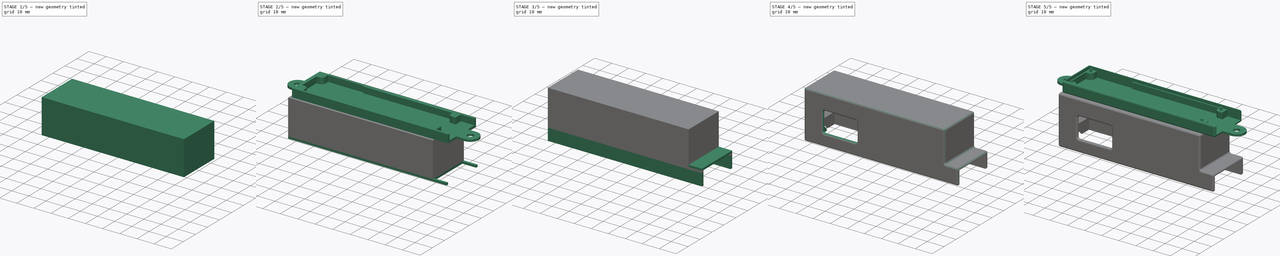
[diagram: build sequence overview — one tinted view per stage of 5, left to right]
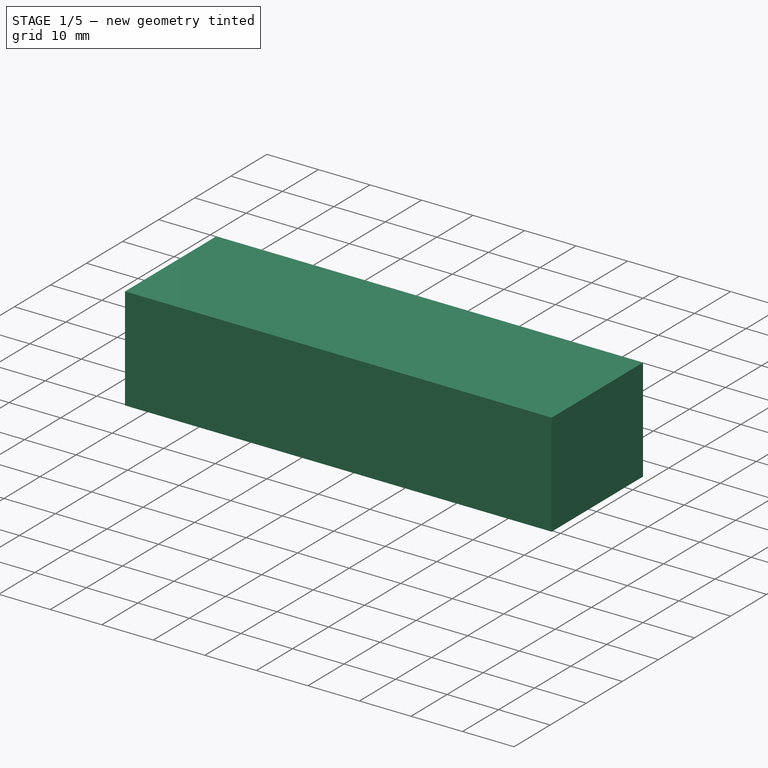
[diagram: stage 1 of 5 — iso view after this stage's code; geometry added in this stage tinted green]
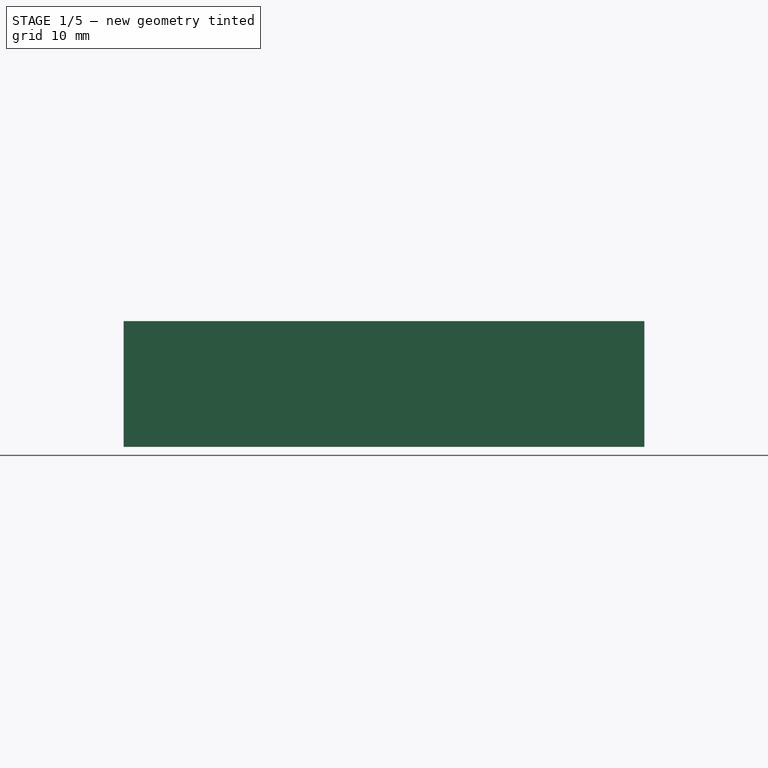
[diagram: stage 1 of 5 — front view after this stage's code; geometry added in this stage tinted green]
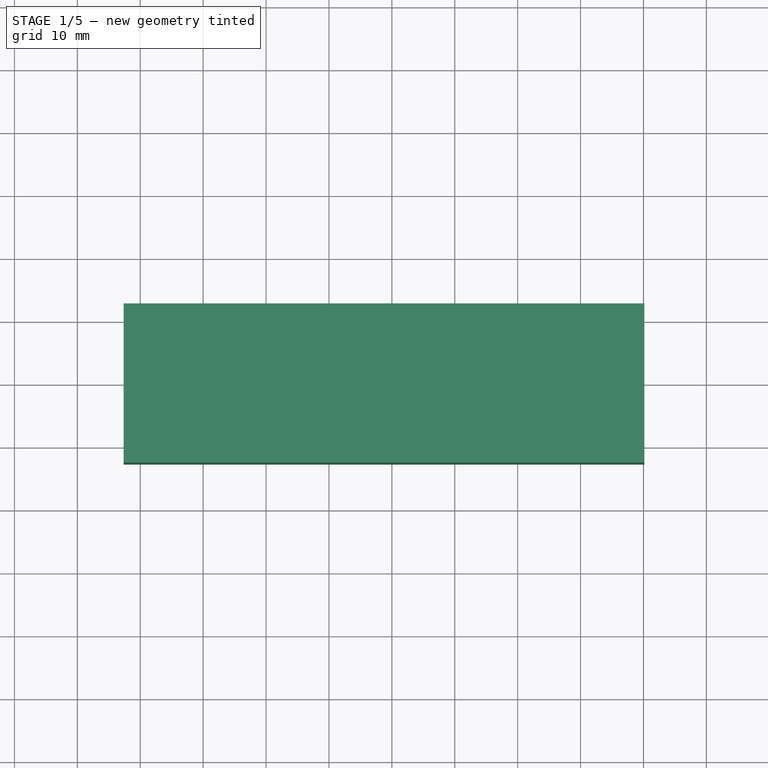
[diagram: stage 1 of 5 — top view after this stage's code; geometry added in this stage tinted green]
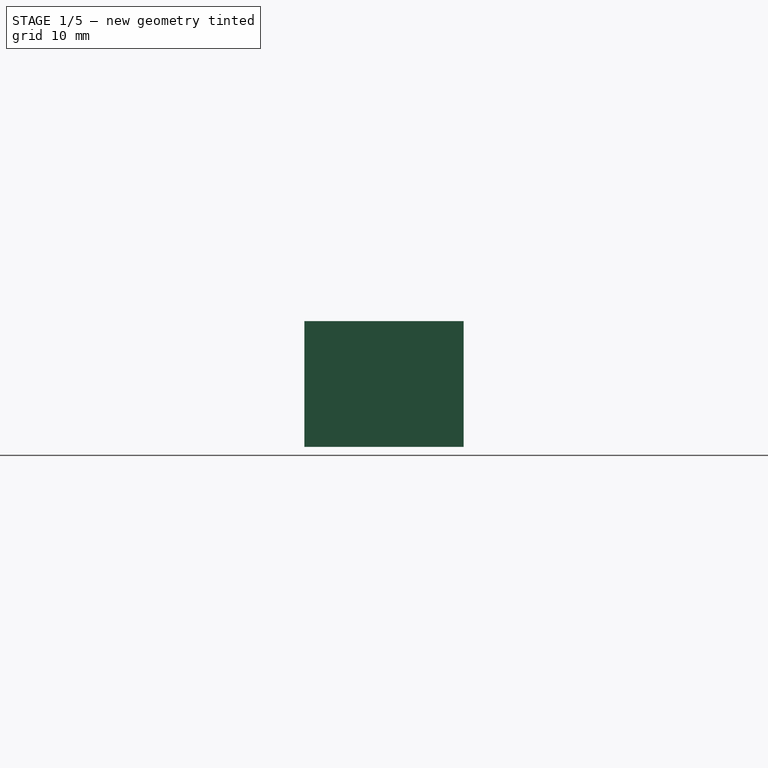
[diagram: stage 1 of 5 — right view after this stage's code; geometry added in this stage tinted green]
FCSTD DOCUMENT  (FreeCAD 0.19R23578 (Git))
Label: ESPDimmerCase
License: All rights reserved
LicenseURL: http://en.wikipedia.org/wiki/All_rights_reserved
objects: Sketcher::SketchObject×17, PartDesign::Pad×9, PartDesign::Pocket×4, PartDesign::Fillet×2, PartDesign::Body×2, Spreadsheet::Sheet×1, PartDesign::ShapeBinder×1, PartDesign::AdditiveLoft×1, App::Part×1
note: 52 computed .brp shape members not serialized (recipe doc carries the construction recipe); baked Part::Feature solids carry a one-line shape summary decoded from their .brp

FEATURE [PartDesign::ShapeBinder] ShapeBinder
  Support = -> [Sketch]
  TraceSupport = false
FEATURE [Sketcher::SketchObject] Sketch004  label="T28_Template"
  ExternalGeometry = -> [ShapeBinder]
  MapMode = 5
  Support = -> [XY_Plane002]
  expr: Constraints[47] = <<Spreadsheet>>.BottomWallThickness
  expr: Constraints[27] = <<Spreadsheet>>.PartTolerance
  sketch-geometry (27):
    g0: LineSegment StartX=-42.65 StartY=12.65 StartZ=0 EndX=48 EndY=12.65 EndZ=0
    g1: LineSegment StartX=48 StartY=12.65 StartZ=0 EndX=48 EndY=-12.65 EndZ=0
    g2: LineSegment StartX=48 StartY=-12.65 StartZ=0 EndX=-42.65 EndY=-12.65 EndZ=0
    g3: LineSegment StartX=-42.65 StartY=-12.65 StartZ=0 EndX=-42.65 EndY=12.65 EndZ=0
    g4: LineSegment StartX=-41.45 StartY=11.45 StartZ=0 EndX=46.8 EndY=11.45 EndZ=0
    g5: LineSegment StartX=46.8 StartY=11.45 StartZ=0 EndX=46.8 EndY=-11.45 EndZ=0
    g6: LineSegment StartX=46.8 StartY=-11.45 StartZ=0 EndX=-41.45 EndY=-11.45 EndZ=0
    g7: LineSegment StartX=-41.45 StartY=-11.45 StartZ=0 EndX=-41.45 EndY=11.45 EndZ=0
    g8: LineSegment StartX=-41.35 StartY=11.35 StartZ=0 EndX=-41.45 EndY=11.35 EndZ=0
    g9: LineSegment StartX=-41.35 StartY=11.35 StartZ=0 EndX=-41.35 EndY=11.45 EndZ=0
    g10: LineSegment StartX=48 StartY=-11.35 StartZ=0 EndX=48 EndY=-11.45 EndZ=0
    g11: LineSegment StartX=-39.4 StartY=11.45 StartZ=0 EndX=-39.4 EndY=-11.45 EndZ=0
    g12: LineSegment StartX=-41.45 StartY=-11.45 StartZ=0 EndX=-42.65 EndY=-11.45 EndZ=0
    g13: LineSegment StartX=-41.45 StartY=-11.45 StartZ=0 EndX=-41.45 EndY=-12.65 EndZ=0
    g14: LineSegment StartX=46.8 StartY=11.45 StartZ=0 EndX=46.8 EndY=12.65 EndZ=0
    g15: LineSegment StartX=46.8 StartY=11.45 StartZ=0 EndX=48 EndY=11.45 EndZ=0
    g16: LineSegment StartX=-41.45 StartY=-9.4 StartZ=0 EndX=46.8 EndY=-9.4 EndZ=0
    g17: LineSegment StartX=46.8 StartY=9.4 StartZ=0 EndX=40.15 EndY=9.4 EndZ=0
    g18: LineSegment StartX=40.15 StartY=11.45 StartZ=0 EndX=40.15 EndY=-11.45 EndZ=0
    g19: LineSegment StartX=38.95 StartY=11.45 StartZ=0 EndX=38.95 EndY=-11.45 EndZ=0
    g20: LineSegment StartX=38.95 StartY=9.4 StartZ=0 EndX=-41.45 EndY=9.4 EndZ=0
    g21: LineSegment StartX=38.95 StartY=9.4 StartZ=0 EndX=40.15 EndY=9.4 EndZ=0
    g22: LineSegment StartX=-41.35 StartY=11.35 StartZ=0 EndX=48 EndY=11.35 EndZ=0
    g23: LineSegment StartX=48 StartY=-11.35 StartZ=0 EndX=-41.35 EndY=-11.35 EndZ=0
    g24: LineSegment StartX=-41.35 StartY=-11.35 StartZ=0 EndX=-41.35 EndY=11.35 EndZ=0
    g25: LineSegment StartX=-41.35 StartY=4.75 StartZ=0 EndX=-42.65 EndY=4.75 EndZ=0
    g26: LineSegment StartX=-41.35 StartY=-4.75 StartZ=0 EndX=-42.65 EndY=-4.75 EndZ=0
  constraints (84):
    c: Coincident(g0,g1)
    c: Coincident(g1,g2)
    c: Coincident(g2,g3)
    c: Coincident(g3,g0)
    c: Horizontal(g0)
    c: Horizontal(g2)
    c: Vertical(g1)
    c: Vertical(g3)
    c: Coincident(g4,g5)
    c: Coincident(g5,g6)
    c: Coincident(g6,g7)
    c: Coincident(g7,g4)
    c: Horizontal(g4)
    c: Horizontal(g6)
    c: Vertical(g5)
    c: Vertical(g7)
    c: Coincident(g8,g-3)
    c: PointOnObject(g8,g7)
    c: Horizontal(g8)
    c: Coincident(g9,g8)
    c: PointOnObject(g9,g4)
    c: Vertical(g9)
    c: Coincident(g10,g-4)
    c: PointOnObject(g10,g6)
    c: Vertical(g10)
    c: Equal(g8,g9)
    c: Equal(g9,g10)
    c: DistanceX(g4,g9) = 0.1
    c: PointOnObject(g11,g4)
    c: PointOnObject(g11,g6)
    c: Vertical(g11)
    c: PointOnObject(g-7,g11)
    c: Coincident(g12,g6)
    c: PointOnObject(g12,g3)
    c: Horizontal(g12)
    c: Coincident(g13,g6)
    c: PointOnObject(g13,g2)
    c: Vertical(g13)
    c: Coincident(g14,g4)
    c: PointOnObject(g14,g0)
    c: Vertical(g14)
    c: Coincident(g15,g4)
    c: PointOnObject(g15,g1)
    c: Horizontal(g15)
    c: Equal(g15,g14)
    c: Equal(g14,g12)
    c: Equal(g12,g13)
    c: DistanceX(g2,g13) = 1.2
    c: PointOnObject(g16,g7)
    c: PointOnObject(g16,g5)
    c: Horizontal(g16)
    c: PointOnObject(g-5,g16)
    c: PointOnObject(g17,g5)
    c: Horizontal(g17)
    c: PointOnObject(g-6,g17)
    c: PointOnObject(g18,g4)
    c: Vertical(g18)
    c: PointOnObject(g-8,g18)
    c: PointOnObject(g19,g4)
    c: Vertical(g19)
    c: PointOnObject(g19,g6)
    c: PointOnObject(g17,g18)
    c: PointOnObject(g20,g19)
    c: Tangent(g17,g20)
    c: Coincident(g21,g20)
    c: Coincident(g21,g17)
    c: PointOnObject(g-3,g1)
    c: PointOnObject(g20,g7)
    c: Equal(g12,g21)
    c: DistanceX(g4,g11) = 2.05  'Ridge'
    c: PointOnObject(g18,g6)
    c: Coincident(g23,g24)
    c: Coincident(g24,g22)
    c: Horizontal(g23)
    c: Vertical(g24)
    c: Coincident(g22,g8)
    c: Coincident(g22,g-3)
    c: Coincident(g23,g10)
    c: Coincident(g25,g-9)
    c: PointOnObject(g25,g3)
    c: Horizontal(g25)
    c: Coincident(g26,g-10)
    c: PointOnObject(g26,g3)
    c: Horizontal(g26)
FEATURE [Sketcher::SketchObject] Sketch005  label="T28_Base"
  ExternalGeometry = -> [Sketch004]
  MapMode = 5
  Placement = pos=(0,0,0) rot=(0,1,0;3.14159rad)
  Support = -> [XY_Plane002]
  sketch-geometry (4):
    g0: LineSegment StartX=42.65 StartY=12.65 StartZ=0 EndX=-40.15 EndY=12.65 EndZ=0
    g1: LineSegment StartX=-40.15 StartY=12.65 StartZ=0 EndX=-40.15 EndY=-12.65 EndZ=0
    g2: LineSegment StartX=-40.15 StartY=-12.65 StartZ=0 EndX=42.65 EndY=-12.65 EndZ=0
    g3: LineSegment StartX=42.65 StartY=-12.65 StartZ=0 EndX=42.65 EndY=12.65 EndZ=0
  constraints (10):
    c: Coincident(g0,g1)
    c: Coincident(g1,g2)
    c: Coincident(g2,g3)
    c: Coincident(g3,g0)
    c: Horizontal(g0)
    c: Horizontal(g2)
    c: Vertical(g1)
    c: Coincident(g0,g-3)
    c: PointOnObject(g-5,g1)
    c: Coincident(g2,g-4)
FEATURE [PartDesign::Pad] Pad003  label="T28_Base_"
  Direction = (1,1,1)
  Length = 1.2
  Length2 = 100
  Profile = -> Sketch005
  Type = 0
  expr: Length = <<Spreadsheet>>.BottomWallThickness
FEATURE [Sketcher::SketchObject] Sketch006  label="T28_Walls"
  AttachmentOffset = pos=(0,0,1.2) rot=(0,0,1;0rad)
  ExternalGeometry = -> [Sketch004]
  MapMode = 5
  Placement = pos=(0,0,-1.2) rot=(0,1,0;3.14159rad)
  Support = -> [XY_Plane002]
  expr: .AttachmentOffset.Base.z = <<T28_Base>>.AttachmentOffset.Base.z + <<T28_Base_>>.Length
  sketch-geometry (8):
    g0: LineSegment StartX=42.65 StartY=12.65 StartZ=0 EndX=-40.15 EndY=12.65 EndZ=0
    g1: LineSegment StartX=-40.15 StartY=12.65 StartZ=0 EndX=-40.15 EndY=-12.65 EndZ=0
    g2: LineSegment StartX=-40.15 StartY=-12.65 StartZ=0 EndX=42.65 EndY=-12.65 EndZ=0
    g3: LineSegment StartX=42.65 StartY=-12.65 StartZ=0 EndX=42.65 EndY=12.65 EndZ=0
    g4: LineSegment StartX=41.45 StartY=11.45 StartZ=0 EndX=-38.95 EndY=11.45 EndZ=0
    g5: LineSegment StartX=-38.95 StartY=11.45 StartZ=0 EndX=-38.95 EndY=-11.45 EndZ=0
    g6: LineSegment StartX=-38.95 StartY=-11.45 StartZ=0 EndX=41.45 EndY=-11.45 EndZ=0
    g7: LineSegment StartX=41.45 StartY=-11.45 StartZ=0 EndX=41.45 EndY=11.45 EndZ=0
  constraints (20):
    c: Coincident(g0,g1)
    c: Coincident(g1,g2)
    c: Coincident(g2,g3)
    c: Coincident(g3,g0)
    c: Horizontal(g0)
    c: Horizontal(g2)
    c: Vertical(g1)
    c: Coincident(g0,g-10)
    c: Coincident(g4,g5)
    c: Coincident(g5,g6)
    c: Coincident(g6,g7)
    c: Coincident(g7,g4)
    c: Horizontal(g4)
    c: Horizontal(g6)
    c: Vertical(g5)
    c: Vertical(g7)
    c: Coincident(g4,g-9)
    c: Coincident(g5,g-8)
    c: PointOnObject(g-7,g1)
    c: Coincident(g2,g-10)
FEATURE [PartDesign::Pad] Pad004  label="T28_Walls_"
  BaseFeature = -> Pad003
  Direction = (1,1,1)
  Length = 16.75
  Length2 = 100
  Profile = -> Sketch006
  Type = 0
  expr: Length = <<Spreadsheet>>.ComponentHeight - Sketch004.Constraints.Ridge - <<Spreadsheet>>.BottomWallThickness
FEATURE [Sketcher::SketchObject] Sketch007  label="T28_RidgeIntroUpper"
  AttachmentOffset = pos=(0,0,17.95) rot=(0,0,1;0rad)
  ExternalGeometry = -> [Sketch004]
  MapMode = 5
  Placement = pos=(0,0,-17.95) rot=(0,1,0;3.14159rad)
  Support = -> [XY_Plane002]
  expr: .AttachmentOffset.Base.z = <<T28_Walls>>.AttachmentOffset.Base.z + <<T28_Walls_>>.Length
  sketch-geometry (8):
    g0: LineSegment StartX=42.65 StartY=12.65 StartZ=0 EndX=-40.15 EndY=12.65 EndZ=0
    g1: LineSegment StartX=-40.15 StartY=12.65 StartZ=0 EndX=-40.15 EndY=-12.65 EndZ=0
    g2: LineSegment StartX=-40.15 StartY=-12.65 StartZ=0 EndX=42.65 EndY=-12.65 EndZ=0
    g3: LineSegment StartX=42.65 StartY=-12.65 StartZ=0 EndX=42.65 EndY=12.65 EndZ=0
    g4: LineSegment StartX=41.45 StartY=11.45 StartZ=0 EndX=-38.95 EndY=11.45 EndZ=0
    g5: LineSegment StartX=-38.95 StartY=11.45 StartZ=0 EndX=-38.95 EndY=-11.45 EndZ=0
    g6: LineSegment StartX=-38.95 StartY=-11.45 StartZ=0 EndX=41.45 EndY=-11.45 EndZ=0
    g7: LineSegment StartX=41.45 StartY=-11.45 StartZ=0 EndX=41.45 EndY=11.45 EndZ=0
  constraints (18):
    c: Coincident(g0,g1)
    c: Coincident(g1,g2)
    c: Coincident(g2,g3)
    c: Coincident(g3,g0)
    c: Horizontal(g0)
    c: Horizontal(g2)
    c: Vertical(g1)
    c: Coincident(g0,g-3)
    c: Coincident(g2,g-4)
    c: PointOnObject(g-5,g1)
    c: Coincident(g4,g5)
    c: Coincident(g5,g6)
    c: Coincident(g6,g7)
    c: Coincident(g7,g4)
    c: Coincident(g4,g-7)
    c: Coincident(g5,g-6)
    c: Coincident(g4,g-6)
    c: Coincident(g6,g-8)
FEATURE [Sketcher::SketchObject] Sketch008  label="T28_RidgeIntroLower"
  AttachmentOffset = pos=(0,0,20) rot=(0,0,1;0rad)
  ExternalGeometry = -> [Sketch004]
  MapMode = 5
  Placement = pos=(0,0,-20) rot=(0,1,0;3.14159rad)
  Support = -> [XY_Plane002]
  expr: .AttachmentOffset.Base.z = <<T28_RidgeIntroUpper>>.AttachmentOffset.Base.z + Sketch004.Constraints.Ridge
  sketch-geometry (8):
    g0: LineSegment StartX=42.65 StartY=12.65 StartZ=0 EndX=-40.15 EndY=12.65 EndZ=0
    g1: LineSegment StartX=-40.15 StartY=12.65 StartZ=0 EndX=-40.15 EndY=-12.65 EndZ=0
    g2: LineSegment StartX=-40.15 StartY=-12.65 StartZ=0 EndX=42.65 EndY=-12.65 EndZ=0
    g3: LineSegment StartX=42.65 StartY=-12.65 StartZ=0 EndX=42.65 EndY=12.65 EndZ=0
    g4: LineSegment StartX=39.4 StartY=9.4 StartZ=0 EndX=-38.95 EndY=9.4 EndZ=0
    g5: LineSegment StartX=-38.95 StartY=9.4 StartZ=0 EndX=-38.95 EndY=-9.4 EndZ=0
    g6: LineSegment StartX=-38.95 StartY=-9.4 StartZ=0 EndX=39.4 EndY=-9.4 EndZ=0
    g7: LineSegment StartX=39.4 StartY=-9.4 StartZ=0 EndX=39.4 EndY=9.4 EndZ=0
  constraints (22):
    c: Coincident(g0,g1)
    c: Coincident(g1,g2)
    c: Coincident(g2,g3)
    c: Coincident(g3,g0)
    c: Horizontal(g0)
    c: Horizontal(g2)
    c: Vertical(g1)
    c: Coincident(g0,g-3)
    c: Coincident(g2,g-4)
    c: PointOnObject(g-5,g1)
    c: Coincident(g4,g5)
    c: Coincident(g5,g6)
    c: Coincident(g6,g7)
    c: Coincident(g7,g4)
    c: Horizontal(g4)
    c: Horizontal(g6)
    c: Vertical(g5)
    c: Vertical(g7)
    c: PointOnObject(g4,g-7)
    c: PointOnObject(g5,g-6)
    c: PointOnObject(g4,g-8)
    c: PointOnObject(g5,g-9)
FEATURE [PartDesign::AdditiveLoft] AdditiveLoft
  BaseFeature = -> Pad004
  Closed = false
  Profile = -> Sketch007
  Ruled = false
  Sections = -> [Sketch008]
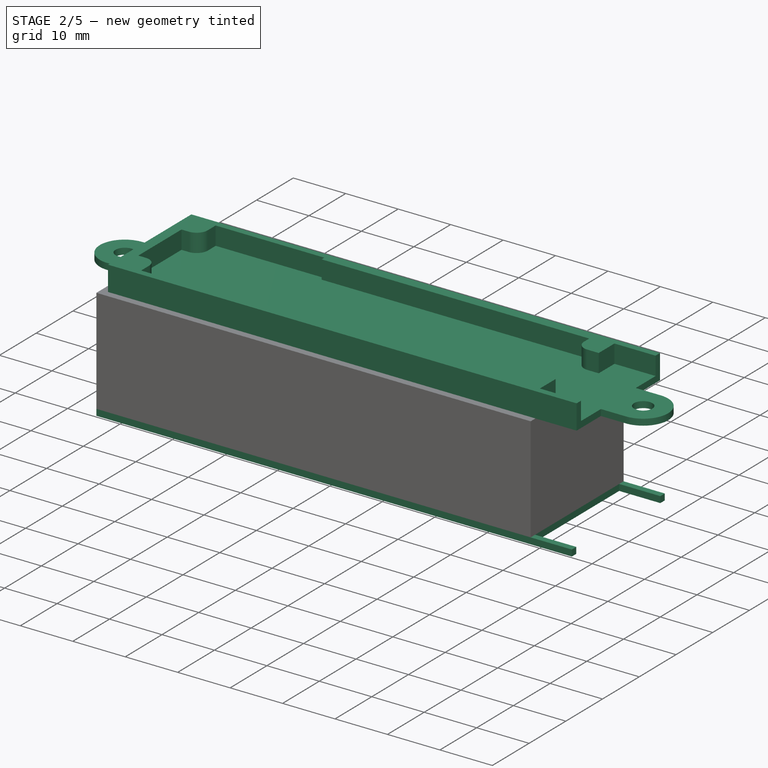
[diagram: stage 2 of 5 — iso view after this stage's code; geometry added in this stage tinted green]
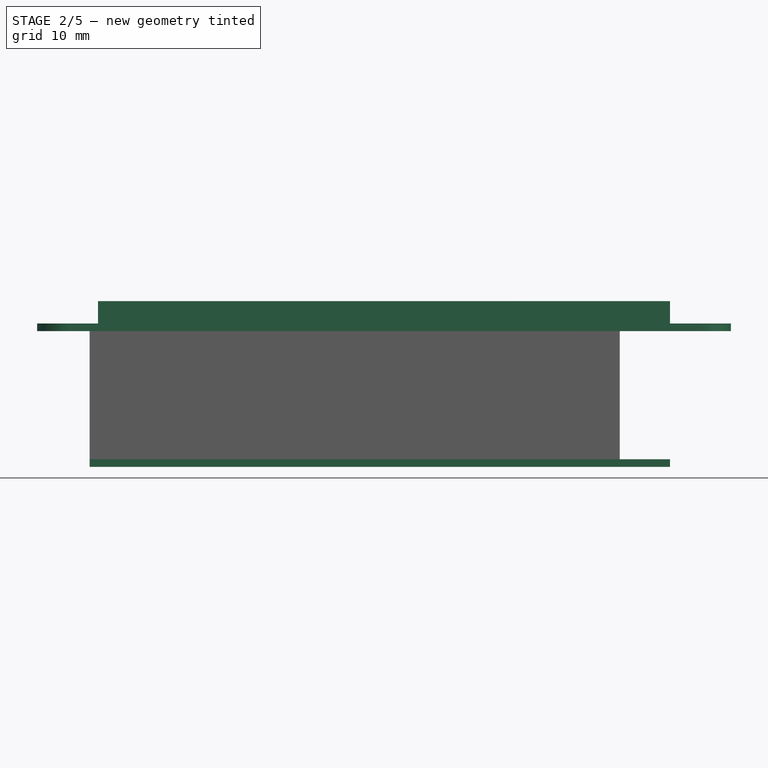
[diagram: stage 2 of 5 — front view after this stage's code; geometry added in this stage tinted green]
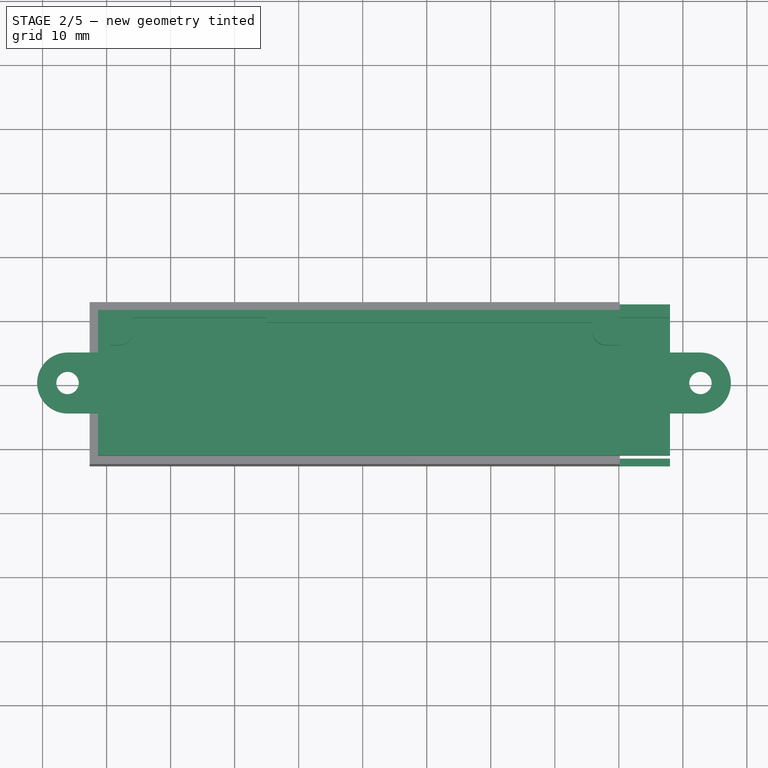
[diagram: stage 2 of 5 — top view after this stage's code; geometry added in this stage tinted green]
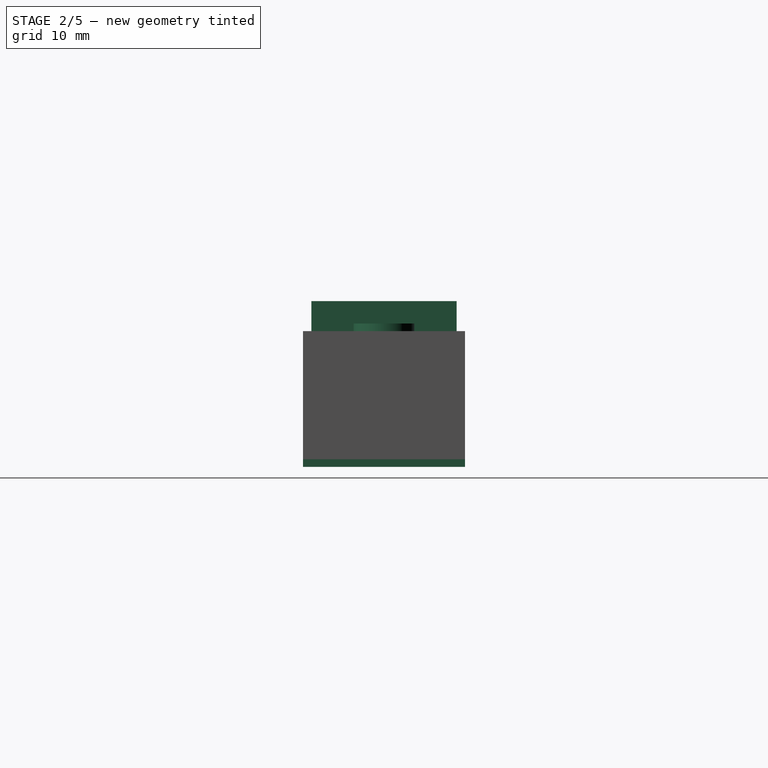
[diagram: stage 2 of 5 — right view after this stage's code; geometry added in this stage tinted green]
FEATURE [Spreadsheet::Sheet] Spreadsheet
  cells = B2=PCBWidth; C2(PCBWidth)==80mm; B3=PCBLength; C3(PCBLength)==20mm; B4=PCBThickness; C4(PCBThickness)==1.6mm; B5=PCBTolerance; C5(PCBTolerance)==0.15mm; B6=PCBHoleRadius; C6(PCBHoleRadius)==1.125mm; B7=SideOverlap; C7(SideOverlap)==0.6mm; B8=BottomWallThickness; C8(BottomWallThickness)==1.2mm; B9=PartTolerance; C9(PartTolerance)==0.1mm; B10=ComponentHeight; C10(ComponentHeight)==20mm; B11=CutoutOffset; C11(CutoutOffset)==8mm
FEATURE [Sketcher::SketchObject] Sketch  label="B28_Template"
  MapMode = 5
  Support = -> [XY_Plane001]
  expr: Constraints[118] = <<Spreadsheet>>.BottomWallThickness
  expr: .Constraints.Rs = Spreadsheet.PCBHoleRadius
  expr: Constraints[47] = <<Spreadsheet>>.PCBTolerance
  expr: Constraints[98] = .Constraints.Rs + 1mm
  expr: Constraints[53] = <<Spreadsheet>>.SideOverlap
  sketch-geometry (61):
    g0: LineSegment StartX=-40 StartY=10 StartZ=0 EndX=40 EndY=10 EndZ=0
    g1: LineSegment StartX=40 StartY=10 StartZ=0 EndX=40 EndY=-10 EndZ=0
    g2: LineSegment StartX=40 StartY=-10 StartZ=0 EndX=-40 EndY=-10 EndZ=0
    g3: LineSegment StartX=-40 StartY=-10 StartZ=0 EndX=-40 EndY=10 EndZ=0
    g4: Circle CenterX=-38 CenterY=8 CenterZ=0 NormalX=0 NormalY=0 NormalZ=1 AngleXU=0 Radius=1.125
    g5: Circle CenterX=-38 CenterY=-8 CenterZ=0 NormalX=0 NormalY=0 NormalZ=1 AngleXU=0 Radius=1.125
    g6: Circle CenterX=38 CenterY=8 CenterZ=0 NormalX=0 NormalY=0 NormalZ=1 AngleXU=0 Radius=1.125
    g7: Circle CenterX=38 CenterY=-8 CenterZ=0 NormalX=0 NormalY=0 NormalZ=1 AngleXU=0 Radius=1.125
    g8: LineSegment StartX=-3.4e-15 StartY=10 StartZ=0 EndX=-3.4e-15 EndY=-10 EndZ=0
    g9: LineSegment StartX=-40 StartY=-7e-16 StartZ=0 EndX=40 EndY=-7e-16 EndZ=0
    g10: LineSegment StartX=-38 StartY=8 StartZ=0 EndX=-40 EndY=8 EndZ=0
    g11: LineSegment StartX=-38 StartY=8 StartZ=0 EndX=-38 EndY=10 EndZ=0
    g12: LineSegment StartX=40.15 StartY=10.15 StartZ=0 EndX=40.15 EndY=5.875 EndZ=0
    g13: LineSegment StartX=-40.15 StartY=-10.15 StartZ=0 EndX=-40.15 EndY=10.15 EndZ=0
    g14: LineSegment StartX=40 StartY=10 StartZ=0 EndX=40 EndY=10.15 EndZ=0
    g15: LineSegment StartX=40 StartY=10 StartZ=0 EndX=40.15 EndY=10 EndZ=0
    g16: LineSegment StartX=-40 StartY=-10 StartZ=0 EndX=-40.15 EndY=-10 EndZ=0
    g17: LineSegment StartX=-40 StartY=-10 StartZ=0 EndX=-40 EndY=-10.15 EndZ=0
    g18: LineSegment StartX=-40.15 StartY=9.4 StartZ=0 EndX=40.15 EndY=9.4 EndZ=0
    g19: LineSegment StartX=40.15 StartY=-9.4 StartZ=0 EndX=-40.15 EndY=-9.4 EndZ=0
    g20: LineSegment StartX=-41.35 StartY=11.35 StartZ=0 EndX=48 EndY=11.35 EndZ=0
    g21: LineSegment StartX=48 StartY=11.35 StartZ=0 EndX=48 EndY=-11.35 EndZ=0
    g22: LineSegment StartX=48 StartY=-11.35 StartZ=0 EndX=-41.35 EndY=-11.35 EndZ=0
    g23: LineSegment StartX=-41.35 StartY=-11.35 StartZ=0 EndX=-41.35 EndY=11.35 EndZ=0
    g24: LineSegment StartX=-41.35 StartY=10.15 StartZ=0 EndX=-40.15 EndY=10.15 EndZ=0
    g25: LineSegment StartX=-40.15 StartY=10.15 StartZ=0 EndX=-40.15 EndY=11.35 EndZ=0
    g26: LineSegment StartX=40.15 StartY=-10.15 StartZ=0 EndX=40.15 EndY=-11.35 EndZ=0
    g27: LineSegment StartX=-38 StartY=-10 StartZ=0 EndX=-38 EndY=-9.4 EndZ=0
    g28: LineSegment StartX=38 StartY=9.4 StartZ=0 EndX=38 EndY=10 EndZ=0
    g29: LineSegment StartX=-39.4 StartY=-10.15 StartZ=0 EndX=-39.4 EndY=10.15 EndZ=0
    g30: LineSegment StartX=-40 StartY=-8 StartZ=0 EndX=-39.4 EndY=-8 EndZ=0
    g31: ArcOfCircle CenterX=-38 CenterY=8 CenterZ=0 NormalX=0 NormalY=0 NormalZ=1 AngleXU=0 Radius=2.125 StartAngle=4.71239 EndAngle=6.28319
    g32: ArcOfCircle CenterX=-38 CenterY=-8 CenterZ=0 NormalX=0 NormalY=0 NormalZ=1 AngleXU=0 Radius=2.125 StartAngle=0 EndAngle=1.5708
    g33: ArcOfCircle CenterX=38 CenterY=8 CenterZ=0 NormalX=0 NormalY=0 NormalZ=1 AngleXU=0 Radius=2.125 StartAngle=3.14159 EndAngle=4.71239
    g34: ArcOfCircle CenterX=38 CenterY=-8 CenterZ=0 NormalX=0 NormalY=0 NormalZ=1 AngleXU=0 Radius=2.125 StartAngle=1.5708 EndAngle=3.14159
    g35: LineSegment StartX=-35.875 StartY=8 StartZ=0 EndX=-35.875 EndY=10.15 EndZ=0
    g36: LineSegment StartX=-38 StartY=5.875 StartZ=0 EndX=-40.15 EndY=5.875 EndZ=0
    g37: LineSegment StartX=-38 StartY=-5.875 StartZ=0 EndX=-40.15 EndY=-5.875 EndZ=0
    g38: LineSegment StartX=-35.875 StartY=-8 StartZ=0 EndX=-35.875 EndY=-10.15 EndZ=0
    g39: LineSegment StartX=38 StartY=-5.875 StartZ=0 EndX=40.15 EndY=-5.875 EndZ=0
    g40: LineSegment StartX=35.875 StartY=-8 StartZ=0 EndX=35.875 EndY=-10.15 EndZ=0
    g41: LineSegment StartX=35.875 StartY=8 StartZ=0 EndX=35.875 EndY=10.15 EndZ=0
    g42: LineSegment StartX=38 StartY=5.875 StartZ=0 EndX=40.15 EndY=5.875 EndZ=0
    g43: LineSegment StartX=40.15 StartY=-5.875 StartZ=0 EndX=40.15 EndY=-10.15 EndZ=0
    g44: LineSegment StartX=46.8 StartY=10.15 StartZ=0 EndX=48 EndY=10.15 EndZ=0
    g45: LineSegment StartX=46.8 StartY=10.15 StartZ=0 EndX=46.8 EndY=-10.15 EndZ=0
    g46: LineSegment StartX=46.8 StartY=10.15 StartZ=0 EndX=-40.15 EndY=10.15 EndZ=0
    g47: LineSegment StartX=40.15 StartY=5.875 StartZ=0 EndX=40.15 EndY=-5.875 EndZ=0
    g48: LineSegment StartX=46.8 StartY=-10.15 StartZ=0 EndX=-40.15 EndY=-10.15 EndZ=0
    g49: LineSegment StartX=-41.35 StartY=-1.2e-15 StartZ=0 EndX=-46.1 EndY=-1.2e-15 EndZ=0
    g50: ArcOfCircle CenterX=-46.1 CenterY=-1.2e-15 CenterZ=0 NormalX=0 NormalY=0 NormalZ=1 AngleXU=0 Radius=4.75 StartAngle=1.5708 EndAngle=4.71239
    g51: Circle CenterX=-46.1 CenterY=-1.2e-15 CenterZ=0 NormalX=0 NormalY=0 NormalZ=1 AngleXU=0 Radius=1.75
    g52: LineSegment StartX=-46.1 StartY=4.75 StartZ=0 EndX=-41.35 EndY=4.75 EndZ=0
    g53: LineSegment StartX=-46.1 StartY=-4.75 StartZ=0 EndX=-41.35 EndY=-4.75 EndZ=0
    g54: LineSegment StartX=-46.1 StartY=-1.2e-15 StartZ=0 EndX=-50.85 EndY=-1.2e-15 EndZ=0
    g55: LineSegment StartX=-46.1 StartY=4.75 StartZ=0 EndX=-46.1 EndY=1.75 EndZ=0
    g56: LineSegment StartX=48 StartY=-1.7e-15 StartZ=0 EndX=52.75 EndY=-1.7e-15 EndZ=0
    g57: Circle CenterX=52.75 CenterY=-1.7e-15 CenterZ=0 NormalX=0 NormalY=0 NormalZ=1 AngleXU=0 Radius=1.75
    g58: ArcOfCircle CenterX=52.75 CenterY=-1.7e-15 CenterZ=0 NormalX=0 NormalY=0 NormalZ=1 AngleXU=0 Radius=4.75 StartAngle=4.71239 EndAngle=7.85398
    g59: LineSegment StartX=52.75 StartY=4.75 StartZ=0 EndX=48 EndY=4.75 EndZ=0
    g60: LineSegment StartX=52.75 StartY=-4.75 StartZ=0 EndX=48 EndY=-4.75 EndZ=0
  constraints (175):
    c: Symmetric(g2,g0,g-1)  '__ANCHOR__'
    c: Coincident(g0,g3)
    c: Coincident(g2,g3)
    c: Coincident(g0,g1)
    c: Coincident(g1,g2)
    c: Horizontal(g2)
    c: Horizontal(g0)
    c: Vertical(g1)
    c: Vertical(g3)
    c: DistanceX(g0,g0) = 80
    c: DistanceY(g3,g3) = 20
    c: PointOnObject(g8,g0)
    c: PointOnObject(g8,g2)
    c: PointOnObject(g9,g3)
    c: PointOnObject(g9,g1)
    c: Symmetric(g0,g2,g9)
    c: Symmetric(g0,g0,g8)
    c: Symmetric(g4,g6,g8)
    c: Symmetric(g4,g5,g9)
    c: Symmetric(g6,g7,g9)
    c: Equal(g7,g6)
    c: Equal(g6,g4)
    c: Equal(g4,g5)
    c: Radius(g4) = 1.125  'Rs'
    c: DistanceX(g4,g6) = 76
    c: Coincident(g10,g4)
    c: PointOnObject(g10,g3)
    c: Horizontal(g10)
    c: Coincident(g11,g4)
    c: PointOnObject(g11,g0)
    c: Vertical(g11)
    c: Equal(g11,g10)
    c: Vertical(g12)
    c: Vertical(g13)
    c: Coincident(g14,g0)
    c: Vertical(g14)
    c: Coincident(g15,g0)
    c: PointOnObject(g15,g12)
    c: Horizontal(g15)
    c: Coincident(g16,g2)
    c: PointOnObject(g16,g13)
    c: Horizontal(g16)
    c: Coincident(g17,g2)
    c: Vertical(g17)
    c: Equal(g14,g15)
    c: Equal(g15,g16)
    c: Equal(g16,g17)
    c: DistanceX(g14,g12) = 0.15
    c: PointOnObject(g18,g13)
    c: PointOnObject(g18,g12)
    c: Horizontal(g18)
    c: PointOnObject(g19,g12)
    c: Horizontal(g19)
    c: DistanceY(g16,g19) = 0.6
    c: Coincident(g20,g21)
    c: Coincident(g21,g22)
    c: Coincident(g22,g23)
    c: Coincident(g23,g20)
    c: Horizontal(g20)
    c: Horizontal(g22)
    c: Vertical(g21)
    c: Vertical(g23)
    c: PointOnObject(g24,g23)
    c: Horizontal(g24)
    c: Coincident(g24,g25)
    c: PointOnObject(g25,g20)
    c: Vertical(g25)
    c: PointOnObject(g26,g22)
    c: Vertical(g26)
    c: Equal(g24,g25)
    c: PointOnObject(g27,g2)
    c: PointOnObject(g27,g19)
    c: Vertical(g27)
    c: PointOnObject(g5,g27)
    c: PointOnObject(g28,g18)
    c: Vertical(g28)
    c: PointOnObject(g6,g28)
    c: Equal(g27,g28)
    c: PointOnObject(g28,g0)
    c: PointOnObject(g19,g13)
    c: Vertical(g29)
    c: PointOnObject(g30,g3)
    c: PointOnObject(g30,g29)
    c: Horizontal(g30)
    c: PointOnObject(g5,g30)
    c: Equal(g27,g30)
    c: Coincident(g31,g4)
    c: Coincident(g32,g5)
    c: Coincident(g33,g6)
    c: Coincident(g34,g7)
    c: Equal(g31,g32)
    c: Equal(g32,g33)
    c: Equal(g33,g34)
    c: Vertical(g35)
    c: PointOnObject(g36,g13)
    c: Horizontal(g36)
    c: Tangent(g31,g36) = 1.5708
    c: Tangent(g31,g35) = -1.5708
    c: Radius(g31) = 2.125
    c: PointOnObject(g37,g13)
    c: Horizontal(g37)
    c: Vertical(g38)
    c: Tangent(g32,g38) = 1.5708
    c: Tangent(g32,g37) = -1.5708
    c: Horizontal(g39)
    c: Vertical(g40)
    c: Tangent(g34,g40) = -1.5708
    c: Tangent(g34,g39) = 1.5708
    c: Vertical(g41)
    c: Horizontal(g42)
    c: Tangent(g33,g42) = -1.5708
    c: Tangent(g33,g41) = 1.5708
    c: Coincident(g12,g42)
    c: Coincident(g43,g39)
    c: Tangent(g12,g43)
    c: Equal(g26,g25)
    c: PointOnObject(g44,g21)
    c: Horizontal(g44)
    c: DistanceX(g44,g20) = 1.2
    c: Equal(g44,g26)
    c: Vertical(g45)
    c: Coincident(g46,g45)
    c: Coincident(g46,g13)
    c: Horizontal(g46)
    c: PointOnObject(g29,g46)
    c: PointOnObject(g35,g46)
    c: PointOnObject(g14,g46)
    c: PointOnObject(g12,g46)
    c: Coincident(g24,g13)
    c: Coincident(g44,g45)
    c: PointOnObject(g41,g46)
    c: Coincident(g47,g12)
    c: Coincident(g47,g39)
    c: DistanceX(g14,g20) = 8
    c: Coincident(g26,g43)
    c: Coincident(g48,g45)
    c: Coincident(g48,g13)
    c: Horizontal(g48)
    c: PointOnObject(g17,g48)
    c: PointOnObject(g29,g48)
    c: PointOnObject(g38,g48)
    c: PointOnObject(g40,g48)
    c: PointOnObject(g43,g48)
    c: Horizontal(g49)
    c: Symmetric(g20,g22,g49)
    c: Coincident(g50,g49)
    c: Coincident(g51,g50)
    c: PointOnObject(g52,g23)
    c: Horizontal(g52)
    c: PointOnObject(g53,g23)
    c: Horizontal(g53)
    c: Tangent(g50,g52) = 1.5708
    c: Tangent(g50,g53) = -1.5708
    c: Radius(g51) = 1.75
    c: Coincident(g54,g50)
    c: PointOnObject(g54,g50)
    c: Horizontal(g54)
    c: Equal(g54,g49)
    c: Coincident(g55,g50)
    c: PointOnObject(g55,g51)
    c: PointOnObject(g50,g55)
    c: DistanceY(g55,g55) = 3
    c: Horizontal(g56)
    c: Symmetric(g20,g21,g56)
    c: Coincident(g57,g56)
    c: Coincident(g58,g57)
    c: PointOnObject(g59,g21)
    c: Horizontal(g59)
    c: PointOnObject(g60,g21)
    c: Horizontal(g60)
    c: Tangent(g58,g59) = -1.5708
    c: Tangent(g58,g60) = 1.5708
    c: Equal(g57,g51)
    c: Equal(g56,g49)
    c: Equal(g58,g50)
FEATURE [Sketcher::SketchObject] Sketch001  label="B28_Base"
  ExternalGeometry = -> [Sketch]
  MapMode = 5
  Support = -> [XY_Plane001]
  sketch-geometry (14):
    g0: LineSegment StartX=-41.35 StartY=11.35 StartZ=0 EndX=48 EndY=11.35 EndZ=0
    g1: LineSegment StartX=48 StartY=11.35 StartZ=0 EndX=48 EndY=4.75 EndZ=0
    g2: LineSegment StartX=48 StartY=-11.35 StartZ=0 EndX=-41.35 EndY=-11.35 EndZ=0
    g3: LineSegment StartX=-41.35 StartY=-11.35 StartZ=0 EndX=-41.35 EndY=-4.75 EndZ=0
    g4: ArcOfCircle CenterX=-46.1 CenterY=-1.2e-15 CenterZ=0 NormalX=0 NormalY=0 NormalZ=1 AngleXU=0 Radius=4.75 StartAngle=1.5708 EndAngle=4.71239
    g5: LineSegment StartX=-46.1 StartY=4.75 StartZ=0 EndX=-41.35 EndY=4.75 EndZ=0
    g6: LineSegment StartX=-46.1 StartY=-4.75 StartZ=0 EndX=-41.35 EndY=-4.75 EndZ=0
    g7: LineSegment StartX=-41.35 StartY=4.75 StartZ=0 EndX=-41.35 EndY=11.35 EndZ=0
    g8: Circle CenterX=52.75 CenterY=-1.7e-15 CenterZ=0 NormalX=0 NormalY=0 NormalZ=1 AngleXU=0 Radius=1.75
    g9: ArcOfCircle CenterX=52.75 CenterY=-1.7e-15 CenterZ=0 NormalX=0 NormalY=0 NormalZ=1 AngleXU=0 Radius=4.75 StartAngle=4.71239 EndAngle=7.85398
    g10: LineSegment StartX=52.75 StartY=4.75 StartZ=0 EndX=48 EndY=4.75 EndZ=0
    g11: LineSegment StartX=52.75 StartY=-4.75 StartZ=0 EndX=48 EndY=-4.75 EndZ=0
    g12: LineSegment StartX=48 StartY=-4.75 StartZ=0 EndX=48 EndY=-11.35 EndZ=0
    g13: Circle CenterX=-46.1 CenterY=-1.2e-15 CenterZ=0 NormalX=0 NormalY=0 NormalZ=1 AngleXU=0 Radius=1.75
  constraints (31):
    c: Coincident(g0,g1)
    c: Coincident(g12,g2)
    c: Coincident(g2,g3)
    c: Coincident(g7,g0)
    c: Coincident(g0,g-3)
    c: Coincident(g12,g-4)
    c: Coincident(g0,g-3)
    c: Coincident(g2,g-4)
    c: Tangent(g3,g7)
    c: Coincident(g9,g8)
    c: Coincident(g1,g10)
    c: Coincident(g4,g-7)
    c: Coincident(g5,g7)
    c: Coincident(g5,g-5)
    c: Coincident(g3,g6)
    c: Coincident(g3,g-6)
    c: Coincident(g13,g4)
    c: Equal(g13,g-7)
    c: Coincident(g4,g5)
    c: Coincident(g4,g-5)
    c: Coincident(g4,g6)
    c: Coincident(g4,g-6)
    c: Coincident(g8,g-10)
    c: Equal(g8,g-10)
    c: Coincident(g9,g-9)
    c: Coincident(g9,g-8)
    c: Coincident(g10,g9)
    c: Coincident(g11,g9)
    c: Coincident(g11,g12)
    c: Coincident(g11,g-9)
    c: Coincident(g1,g-8)
FEATURE [PartDesign::Pad] Pad  label="B28_Base_"
  Direction = (1,1,1)
  Length = 1.2
  Length2 = 100
  Profile = -> Sketch001
  Type = 0
  expr: Length = <<Spreadsheet>>.BottomWallThickness
FEATURE [Sketcher::SketchObject] Sketch002  label="B28_Walls"
  AttachmentOffset = pos=(0,0,1.2) rot=(0,0,1;0rad)
  ExternalGeometry = -> [Sketch]
  MapMode = 5
  Placement = pos=(0,0,1.2) rot=(0,0,1;0rad)
  Support = -> [XY_Plane001]
  expr: .AttachmentOffset.Base.z = <<B28_Base>>.AttachmentOffset.Base.z + <<B28_Base_>>.Length
  sketch-geometry (29):
    g0: LineSegment StartX=-41.35 StartY=11.35 StartZ=0 EndX=48 EndY=11.35 EndZ=0
    g1: LineSegment StartX=48 StartY=-11.35 StartZ=0 EndX=-41.35 EndY=-11.35 EndZ=0
    g2: LineSegment StartX=-41.35 StartY=-11.35 StartZ=0 EndX=-41.35 EndY=11.35 EndZ=0
    g3: ArcOfCircle CenterX=-38 CenterY=8 CenterZ=0 NormalX=0 NormalY=0 NormalZ=1 AngleXU=0 Radius=2.125 StartAngle=4.71239 EndAngle=6.28319
    g4: ArcOfCircle CenterX=-38 CenterY=-8 CenterZ=0 NormalX=0 NormalY=0 NormalZ=1 AngleXU=0 Radius=2.125 StartAngle=6e-16 EndAngle=1.5708
    g5: ArcOfCircle CenterX=38 CenterY=8 CenterZ=0 NormalX=0 NormalY=0 NormalZ=1 AngleXU=0 Radius=2.125 StartAngle=3.14159 EndAngle=4.71239
    g6: ArcOfCircle CenterX=38 CenterY=-8 CenterZ=0 NormalX=0 NormalY=0 NormalZ=1 AngleXU=0 Radius=2.125 StartAngle=1.5708 EndAngle=3.14159
    g7: LineSegment StartX=-35.875 StartY=8 StartZ=0 EndX=-35.875 EndY=10.15 EndZ=0
    g8: LineSegment StartX=-38 StartY=5.875 StartZ=0 EndX=-39.4 EndY=5.875 EndZ=0
    g9: LineSegment StartX=-38 StartY=-5.875 StartZ=0 EndX=-39.4 EndY=-5.875 EndZ=0
    g10: LineSegment StartX=-39.4 StartY=5.875 StartZ=0 EndX=-39.4 EndY=-5.875 EndZ=0
    g11: LineSegment StartX=-35.875 StartY=-8 StartZ=0 EndX=-35.875 EndY=-10.15 EndZ=0
    g12: LineSegment StartX=-35.875 StartY=10.15 StartZ=0 EndX=-15.15 EndY=10.15 EndZ=0
    g13: LineSegment StartX=-15.15 StartY=10.15 StartZ=0 EndX=-15.15 EndY=9.4 EndZ=0
    g14: LineSegment StartX=-15.15 StartY=9.4 StartZ=0 EndX=-15.15 EndY=-9.4 EndZ=0
    g15: LineSegment StartX=-15.15 StartY=-9.4 StartZ=0 EndX=-15.15 EndY=-10.15 EndZ=0
    g16: LineSegment StartX=-15.15 StartY=-10.15 StartZ=0 EndX=-35.875 EndY=-10.15 EndZ=0
    g17: LineSegment StartX=35.875 StartY=8 StartZ=0 EndX=35.875 EndY=9.4 EndZ=0
    g18: LineSegment StartX=35.875 StartY=-8 StartZ=0 EndX=35.875 EndY=-9.4 EndZ=0
    g19: LineSegment StartX=35.875 StartY=-9.4 StartZ=0 EndX=-15.15 EndY=-9.4 EndZ=0
    g20: LineSegment StartX=35.875 StartY=9.4 StartZ=0 EndX=-15.15 EndY=9.4 EndZ=0
    g21: LineSegment StartX=38 StartY=-5.875 StartZ=0 EndX=40.15 EndY=-5.875 EndZ=0
    g22: LineSegment StartX=40.15 StartY=-5.875 StartZ=0 EndX=40.15 EndY=-10.15 EndZ=0
    g23: LineSegment StartX=40.15 StartY=-10.15 StartZ=0 EndX=48 EndY=-10.15 EndZ=0
    g24: LineSegment StartX=48 StartY=10.15 StartZ=0 EndX=40.15 EndY=10.15 EndZ=0
    g25: LineSegment StartX=40.15 StartY=10.15 StartZ=0 EndX=40.15 EndY=5.875 EndZ=0
    g26: LineSegment StartX=40.15 StartY=5.875 StartZ=0 EndX=38 EndY=5.875 EndZ=0
    g27: LineSegment StartX=48 StartY=11.35 StartZ=0 EndX=48 EndY=10.15 EndZ=0
    g28: LineSegment StartX=48 StartY=-10.15 StartZ=0 EndX=48 EndY=-11.35 EndZ=0
  constraints (75):
    c: Coincident(g1,g2)
    c: Coincident(g2,g0)
    c: Horizontal(g1)
    c: Vertical(g2)
    c: Coincident(g0,g-10)
    c: Coincident(g7,g3)
    c: PointOnObject(g7,g-8)
    c: Vertical(g7)
    c: Coincident(g8,g3)
    c: PointOnObject(g8,g-9)
    c: Horizontal(g8)
    c: Coincident(g9,g4)
    c: PointOnObject(g9,g-9)
    c: Horizontal(g9)
    c: Coincident(g10,g8)
    c: Coincident(g10,g9)
    c: Coincident(g11,g4)
    c: PointOnObject(g11,g-5)
    c: Vertical(g11)
    c: Coincident(g12,g7)
    c: PointOnObject(g12,g-8)
    c: Coincident(g13,g12)
    c: PointOnObject(g13,g-7)
    c: Vertical(g13)
    c: Coincident(g14,g13)
    c: PointOnObject(g14,g-6)
    c: Vertical(g14)
    c: Coincident(g15,g14)
    c: PointOnObject(g15,g-5)
    c: Vertical(g15)
    c: Coincident(g16,g15)
    c: Coincident(g16,g11)
    c: DistanceX(g-8,g12) = 25
    c: Coincident(g17,g5)
    c: PointOnObject(g17,g-7)
    c: Vertical(g17)
    c: Coincident(g18,g6)
    c: PointOnObject(g18,g-6)
    c: Vertical(g18)
    c: Coincident(g19,g18)
    c: Coincident(g19,g15)
    c: Coincident(g20,g17)
    c: Coincident(g20,g13)
    c: Coincident(g21,g6)
    c: Coincident(g21,g-12)
    c: Coincident(g22,g21)
    c: Coincident(g22,g-12)
    c: Coincident(g23,g22)
    c: Coincident(g24,g-13)
    c: Coincident(g25,g24)
    c: Coincident(g26,g-13)
    c: Coincident(g26,g5)
    c: Coincident(g25,g26)
    c: PointOnObject(g-8,g24)
    c: PointOnObject(g23,g-11)
    c: PointOnObject(g24,g-11)
    c: PointOnObject(g-5,g23)
    c: Coincident(g0,g-11)
    c: Coincident(g1,g-11)
    c: Coincident(g27,g0)
    c: Coincident(g27,g24)
    c: Coincident(g28,g23)
    c: Coincident(g28,g1)
    c: Coincident(g3,g-17)
    c: Coincident(g4,g-16)
    c: Coincident(g5,g-14)
    c: Coincident(g6,g-15)
    c: Coincident(g6,g-15)
    c: Coincident(g5,g-14)
    c: Coincident(g5,g-14)
    c: Coincident(g6,g-15)
    c: Coincident(g3,g-17)
    c: Coincident(g3,g-17)
    c: Coincident(g4,g-16)
    c: Coincident(g4,g-16)
FEATURE [PartDesign::Pad] Pad001  label="B28_Walls_"
  BaseFeature = -> Pad
  Direction = (1,1,1)
  Length = 3.5
  Length2 = 100
  Profile = -> Sketch002
  Type = 0
FEATURE [Sketcher::SketchObject] Sketch009  label="T28_Ridge"
  AttachmentOffset = pos=(0,0,20) rot=(0,0,1;0rad)
  ExternalGeometry = -> [Sketch004]
  MapMode = 5
  Placement = pos=(0,0,-20) rot=(0,1,0;3.14159rad)
  Support = -> [XY_Plane002]
  expr: .AttachmentOffset.Base.z = <<T28_RidgeIntroLower>>.AttachmentOffset.Base.z
  sketch-geometry (12):
    g0: LineSegment StartX=42.65 StartY=12.65 StartZ=0 EndX=-48 EndY=12.65 EndZ=0
    g1: LineSegment StartX=-48 StartY=12.65 StartZ=0 EndX=-48 EndY=11.45 EndZ=0
    g2: LineSegment StartX=-48 StartY=11.45 StartZ=0 EndX=-40.15 EndY=11.45 EndZ=0
    g3: LineSegment StartX=-40.15 StartY=11.45 StartZ=0 EndX=-40.15 EndY=-11.45 EndZ=0
    g4: LineSegment StartX=-40.15 StartY=-11.45 StartZ=0 EndX=-48 EndY=-11.45 EndZ=0
    g5: LineSegment StartX=-48 StartY=-11.45 StartZ=0 EndX=-48 EndY=-12.65 EndZ=0
    g6: LineSegment StartX=-48 StartY=-12.65 StartZ=0 EndX=42.65 EndY=-12.65 EndZ=0
    g7: LineSegment StartX=42.65 StartY=-12.65 StartZ=0 EndX=42.65 EndY=12.65 EndZ=0
    g8: LineSegment StartX=-38.95 StartY=9.4 StartZ=0 EndX=39.4 EndY=9.4 EndZ=0
    g9: LineSegment StartX=39.4 StartY=9.4 StartZ=0 EndX=39.4 EndY=-9.4 EndZ=0
    g10: LineSegment StartX=39.4 StartY=-9.4 StartZ=0 EndX=-38.95 EndY=-9.4 EndZ=0
    g11: LineSegment StartX=-38.95 StartY=-9.4 StartZ=0 EndX=-38.95 EndY=9.4 EndZ=0
  constraints (29):
    c: Coincident(g-10,g0)
    c: Coincident(g0,g-3)
    c: Coincident(g0,g1)
    c: Vertical(g1)
    c: Coincident(g1,g2)
    c: Coincident(g2,g-9)
    c: Horizontal(g2)
    c: Coincident(g2,g3)
    c: Coincident(g3,g-9)
    c: Coincident(g3,g4)
    c: Horizontal(g4)
    c: Coincident(g4,g5)
    c: Coincident(g5,g-4)
    c: Vertical(g5)
    c: Coincident(g5,g6)
    c: Coincident(g6,g-10)
    c: Coincident(g6,g7)
    c: Coincident(g7,g0)
    c: Coincident(g8,g9)
    c: Coincident(g9,g10)
    c: Coincident(g10,g11)
    c: Coincident(g11,g8)
    c: Horizontal(g8)
    c: Horizontal(g10)
    c: Vertical(g9)
    c: Vertical(g11)
    c: Coincident(g8,g-12)
    c: PointOnObject(g9,g-7)
    c: PointOnObject(g9,g-11)
FEATURE [PartDesign::Pad] Pad005  label="T28_Ridge_"
  BaseFeature = -> AdditiveLoft
  Direction = (1,1,1)
  Length = 1.2
  Length2 = 100
  Profile = -> Sketch009
  Type = 0
  expr: Length = <<Spreadsheet>>.BottomWallThickness
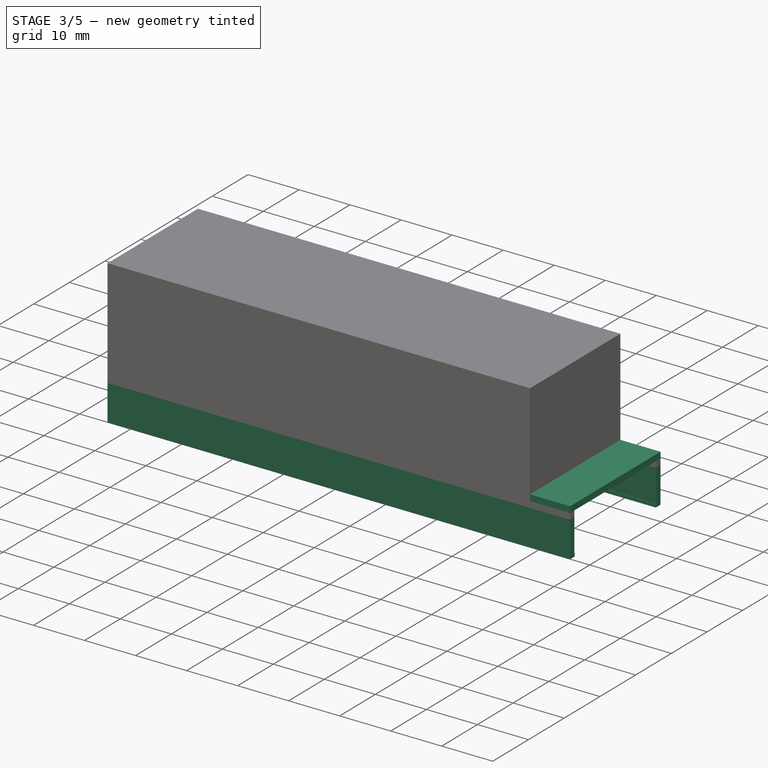
[diagram: stage 3 of 5 — iso view after this stage's code; geometry added in this stage tinted green]
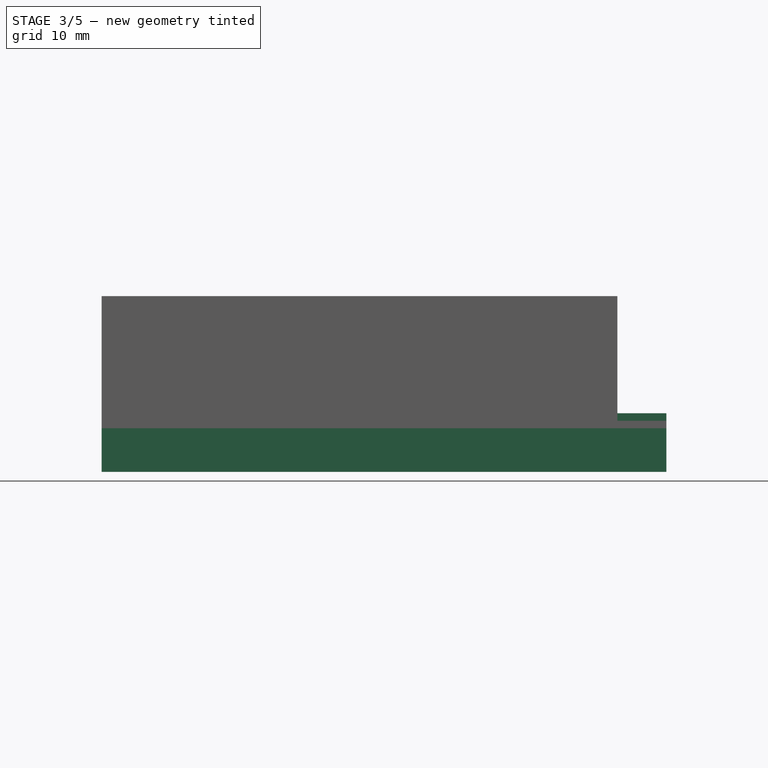
[diagram: stage 3 of 5 — front view after this stage's code; geometry added in this stage tinted green]
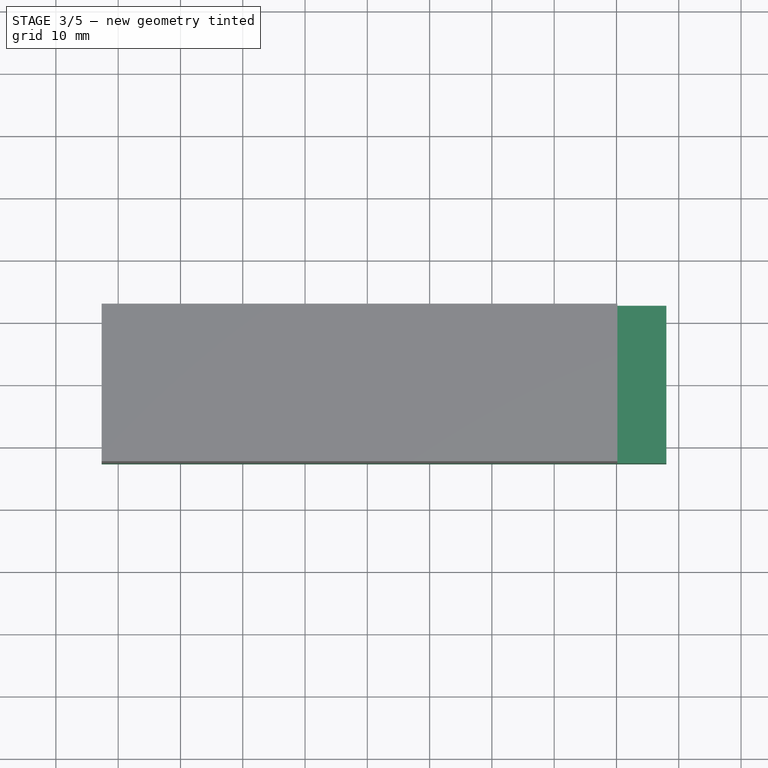
[diagram: stage 3 of 5 — top view after this stage's code; geometry added in this stage tinted green]
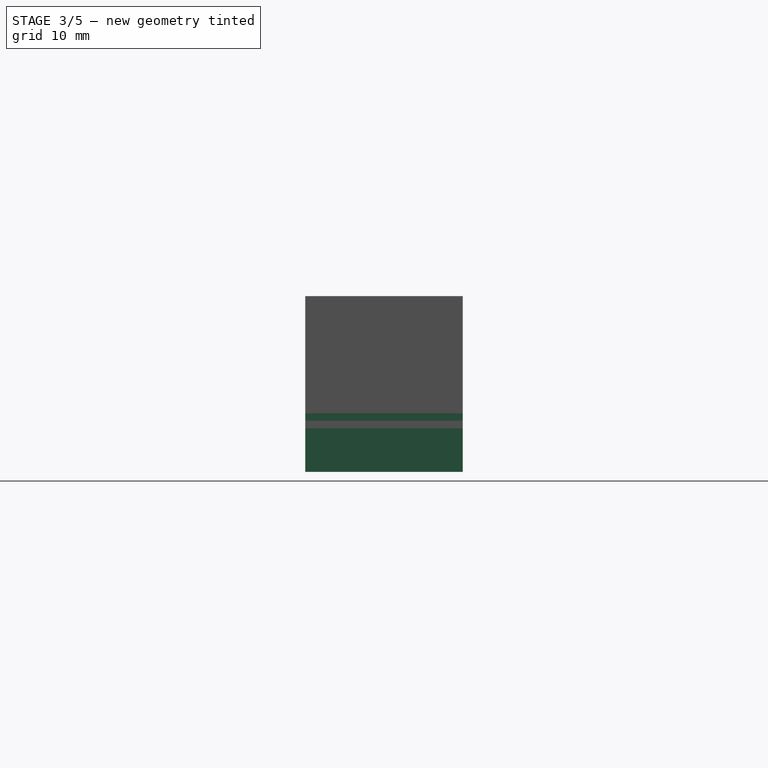
[diagram: stage 3 of 5 — right view after this stage's code; geometry added in this stage tinted green]
FEATURE [Sketcher::SketchObject] Sketch003  label="B28_PCBLock"
  AttachmentOffset = pos=(0,0,4.7) rot=(0,0,1;0rad)
  ExternalGeometry = -> [Sketch]
  MapMode = 5
  Placement = pos=(0,0,4.7) rot=(0,0,1;0rad)
  Support = -> [XY_Plane001]
  expr: .AttachmentOffset.Base.z = <<B28_Walls>>.AttachmentOffset.Base.z + <<B28_Walls_>>.Length
  sketch-geometry (13):
    g0: LineSegment StartX=-41.35 StartY=11.35 StartZ=0 EndX=48 EndY=11.35 EndZ=0
    g1: LineSegment StartX=48 StartY=-11.35 StartZ=0 EndX=-41.35 EndY=-11.35 EndZ=0
    g2: LineSegment StartX=-41.35 StartY=-11.35 StartZ=0 EndX=-41.35 EndY=11.35 EndZ=0
    g3: LineSegment StartX=-40.15 StartY=-10.15 StartZ=0 EndX=-40.15 EndY=10.15 EndZ=0
    g4: LineSegment StartX=-40.15 StartY=10.15 StartZ=0 EndX=48 EndY=10.15 EndZ=0
    g5: LineSegment StartX=48 StartY=10.15 StartZ=0 EndX=48 EndY=11.35 EndZ=0
    g6: LineSegment StartX=48 StartY=-10.15 StartZ=0 EndX=-40.15 EndY=-10.15 EndZ=0
    g7: LineSegment StartX=48 StartY=-11.35 StartZ=0 EndX=48 EndY=-10.15 EndZ=0
    g8: Circle CenterX=-38 CenterY=8 CenterZ=0 NormalX=0 NormalY=0 NormalZ=1 AngleXU=0 Radius=0.6
    g9: LineSegment StartX=-37.4 StartY=8 StartZ=0 EndX=-36.875 EndY=8 EndZ=0
    g10: Circle CenterX=-38 CenterY=-8 CenterZ=0 NormalX=0 NormalY=0 NormalZ=1 AngleXU=0 Radius=0.6
    g11: Circle CenterX=38 CenterY=-8 CenterZ=0 NormalX=0 NormalY=0 NormalZ=1 AngleXU=0 Radius=0.6
    g12: Circle CenterX=38 CenterY=8 CenterZ=0 NormalX=0 NormalY=0 NormalZ=1 AngleXU=0 Radius=0.6
  constraints (31):
    c: Coincident(g1,g2)
    c: Coincident(g2,g0)
    c: Coincident(g0,g-3)
    c: Coincident(g0,g-3)
    c: Coincident(g1,g-6)
    c: Coincident(g1,g-6)
    c: Coincident(g3,g-5)
    c: Coincident(g3,g-4)
    c: Coincident(g4,g3)
    c: Horizontal(g4)
    c: PointOnObject(g4,g-7)
    c: Coincident(g5,g4)
    c: Coincident(g5,g0)
    c: PointOnObject(g6,g-7)
    c: Coincident(g6,g3)
    c: PointOnObject(g-5,g6)
    c: Coincident(g7,g1)
    c: Coincident(g7,g6)
    c: Coincident(g8,g-8)
    c: PointOnObject(g9,g8)
    c: PointOnObject(g9,g-8)
    c: Horizontal(g9)
    c: PointOnObject(g8,g9)
    c: DistanceX(g9,g9) = 0.525
    c: Coincident(g10,g-9)
    c: Coincident(g11,g-10)
    c: Coincident(g12,g-11)
    c: Equal(g8,g10)
    c: Equal(g10,g11)
    c: Equal(g11,g12)
    c: Radius(g8) = 0.6
FEATURE [PartDesign::Pad] Pad002  label="B28_PCBLock_"
  BaseFeature = -> Pad001
  Direction = (1,1,1)
  Length = 1.6
  Length2 = 100
  Profile = -> Sketch003
  Refine = true
  Type = 0
  expr: Length = Spreadsheet.PCBThickness
FEATURE [Sketcher::SketchObject] Sketch010  label="T28_BottomWalls"
  AttachmentOffset = pos=(0,0,21.2) rot=(0,0,1;0rad)
  ExternalGeometry = -> [Sketch004]
  MapMode = 5
  Placement = pos=(0,0,-21.2) rot=(0,1,0;3.14159rad)
  Support = -> [XY_Plane002]
  expr: .AttachmentOffset.Base.z = <<T28_Ridge>>.AttachmentOffset.Base.z + <<T28_Ridge_>>.Length
  sketch-geometry (8):
    g0: LineSegment StartX=-48 StartY=12.65 StartZ=0 EndX=-48 EndY=11.45 EndZ=0
    g1: LineSegment StartX=-48 StartY=-11.45 StartZ=0 EndX=-48 EndY=-12.65 EndZ=0
    g2: LineSegment StartX=-48 StartY=11.45 StartZ=0 EndX=41.45 EndY=11.45 EndZ=0
    g3: LineSegment StartX=41.45 StartY=11.45 StartZ=0 EndX=41.45 EndY=-11.45 EndZ=0
    g4: LineSegment StartX=41.45 StartY=-11.45 StartZ=0 EndX=-48 EndY=-11.45 EndZ=0
    g5: LineSegment StartX=-48 StartY=-12.65 StartZ=0 EndX=42.65 EndY=-12.65 EndZ=0
    g6: LineSegment StartX=42.65 StartY=-12.65 StartZ=0 EndX=42.65 EndY=12.65 EndZ=0
    g7: LineSegment StartX=42.65 StartY=12.65 StartZ=0 EndX=-48 EndY=12.65 EndZ=0
  constraints (18):
    c: Coincident(g-3,g0)
    c: Vertical(g0)
    c: Coincident(g1,g-4)
    c: Vertical(g1)
    c: Coincident(g0,g2)
    c: Coincident(g2,g-6)
    c: Horizontal(g2)
    c: Coincident(g2,g3)
    c: Coincident(g3,g-6)
    c: Coincident(g3,g4)
    c: Horizontal(g4)
    c: Coincident(g1,g4)
    c: Coincident(g1,g5)
    c: Coincident(g5,g-4)
    c: Coincident(g5,g6)
    c: Coincident(g6,g-3)
    c: Coincident(g6,g7)
    c: Coincident(g7,g0)
FEATURE [PartDesign::Pad] Pad006  label="T28_BottomWalls_"
  BaseFeature = -> Pad005
  Direction = (1,1,1)
  Length = 6.4
  Length2 = 100
  Profile = -> Sketch010
  Type = 0
  expr: Length = <<B28_PCBLock>>.AttachmentOffset.Base.z + <<B28_PCBLock_>>.Length + <<Spreadsheet>>.PartTolerance
FEATURE [Sketcher::SketchObject] Sketch011  label="T28_Lock"
  AttachmentOffset = pos=(0,0,27.6) rot=(0,0,1;0rad)
  ExternalGeometry = -> [Sketch004]
  MapMode = 5
  Placement = pos=(0,0,-27.6) rot=(0,1,0;3.14159rad)
  Support = -> [XY_Plane002]
  expr: .AttachmentOffset.Base.z = <<T28_BottomWalls>>.AttachmentOffset.Base.z + <<T28_BottomWalls_>>.Length
  sketch-geometry (12):
    g0: LineSegment StartX=-48 StartY=12.65 StartZ=0 EndX=-48 EndY=11.35 EndZ=0
    g1: LineSegment StartX=-48 StartY=11.35 StartZ=0 EndX=39.4 EndY=11.35 EndZ=0
    g2: LineSegment StartX=39.4 StartY=11.35 StartZ=0 EndX=39.4 EndY=11.45 EndZ=0
    g3: LineSegment StartX=39.4 StartY=11.45 StartZ=0 EndX=41.45 EndY=11.45 EndZ=0
    g4: LineSegment StartX=41.45 StartY=11.45 StartZ=0 EndX=41.45 EndY=-11.45 EndZ=0
    g5: LineSegment StartX=41.45 StartY=-11.45 StartZ=0 EndX=39.4 EndY=-11.45 EndZ=0
    g6: LineSegment StartX=39.4 StartY=-11.45 StartZ=0 EndX=39.4 EndY=-11.35 EndZ=0
    g7: LineSegment StartX=39.4 StartY=-11.35 StartZ=0 EndX=-48 EndY=-11.35 EndZ=0
    g8: LineSegment StartX=-48 StartY=-11.35 StartZ=0 EndX=-48 EndY=-12.65 EndZ=0
    g9: LineSegment StartX=-48 StartY=-12.65 StartZ=0 EndX=42.65 EndY=-12.65 EndZ=0
    g10: LineSegment StartX=42.65 StartY=-12.65 StartZ=0 EndX=42.65 EndY=12.65 EndZ=0
    g11: LineSegment StartX=42.65 StartY=12.65 StartZ=0 EndX=-48 EndY=12.65 EndZ=0
  constraints (26):
    c: Coincident(g-3,g0)
    c: Coincident(g0,g-4)
    c: Coincident(g0,g1)
    c: PointOnObject(g1,g-9)
    c: Horizontal(g1)
    c: Coincident(g1,g2)
    c: Coincident(g2,g-9)
    c: Coincident(g2,g3)
    c: Coincident(g3,g-6)
    c: Coincident(g3,g4)
    c: Coincident(g4,g-6)
    c: Coincident(g4,g5)
    c: Coincident(g5,g-9)
    c: Coincident(g5,g6)
    c: PointOnObject(g6,g-5)
    c: Vertical(g6)
    c: Coincident(g6,g7)
    c: Coincident(g7,g-5)
    c: Coincident(g7,g8)
    c: Coincident(g8,g-8)
    c: Coincident(g8,g9)
    c: Coincident(g9,g-8)
    c: Coincident(g9,g10)
    c: Coincident(g10,g-7)
    c: Coincident(g10,g11)
    c: Coincident(g11,g0)
FEATURE [PartDesign::Pad] Pad007  label="T28_Lock_"
  BaseFeature = -> Pad006
  Direction = (1,1,1)
  Length = 0.6
  Length2 = 100
  Profile = -> Sketch011
  Type = 0
FEATURE [Sketcher::SketchObject] Sketch012  label="T28_COnnCover"
  AttachmentOffset = pos=(0,0,20) rot=(0,0,1;0rad)
  ExternalGeometry = -> [Sketch004]
  MapMode = 5
  Placement = pos=(0,0,-20) rot=(0,1,0;3.14159rad)
  Support = -> [XY_Plane002]
  expr: .AttachmentOffset.Base.z = <<T28_Ridge>>.AttachmentOffset.Base.z
  sketch-geometry (4):
    g0: LineSegment StartX=-48 StartY=12.65 StartZ=0 EndX=-40.15 EndY=12.65 EndZ=0
    g1: LineSegment StartX=-40.15 StartY=12.65 StartZ=0 EndX=-40.15 EndY=-12.65 EndZ=0
    g2: LineSegment StartX=-40.15 StartY=-12.65 StartZ=0 EndX=-48 EndY=-12.65 EndZ=0
    g3: LineSegment StartX=-48 StartY=-12.65 StartZ=0 EndX=-48 EndY=12.65 EndZ=0
  constraints (10):
    c: Coincident(g0,g1)
    c: Coincident(g1,g2)
    c: Coincident(g2,g3)
    c: Coincident(g3,g0)
    c: Horizontal(g0)
    c: Horizontal(g2)
    c: Vertical(g1)
    c: Coincident(g0,g-3)
    c: Coincident(g2,g-4)
    c: PointOnObject(g-5,g1)
FEATURE [PartDesign::Pad] Pad008  label="T28_COnnCover_"
  BaseFeature = -> Pad007
  Direction = (1,1,1)
  Length = 1.2
  Length2 = 100
  Profile = -> Sketch012
  Reversed = true
  Type = 0
  expr: Length = <<Spreadsheet>>.BottomWallThickness
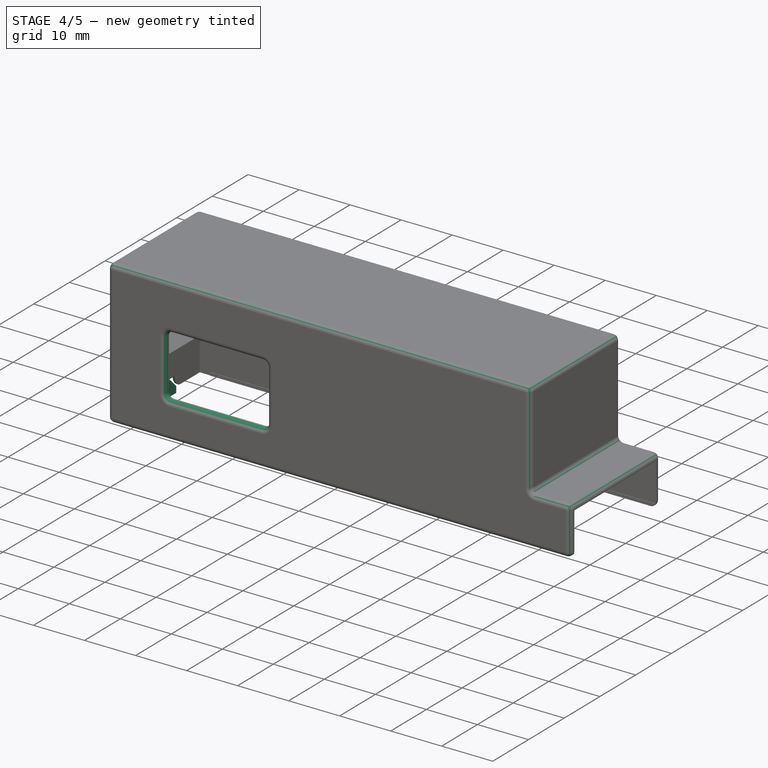
[diagram: stage 4 of 5 — iso view after this stage's code; geometry added in this stage tinted green]
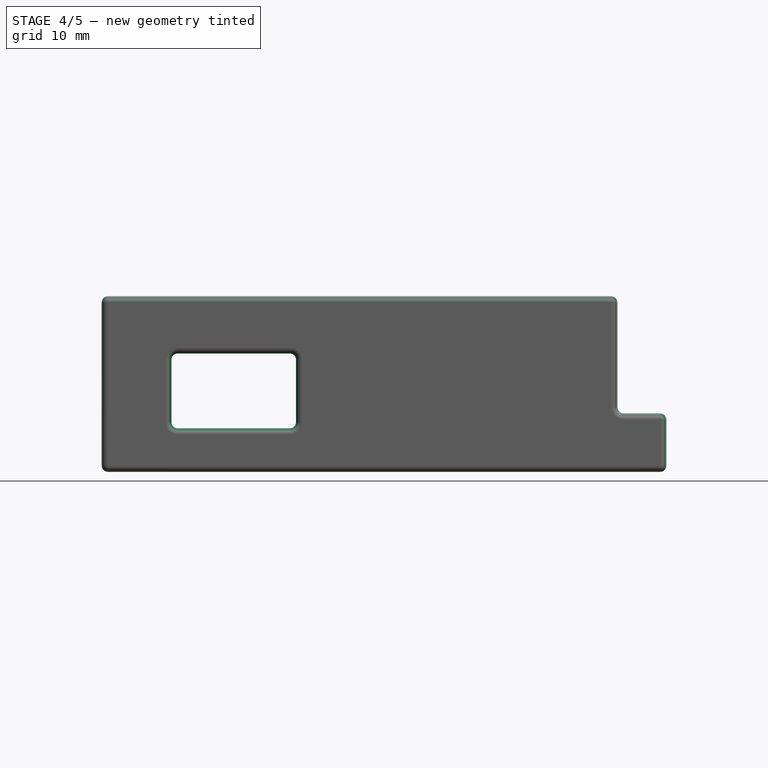
[diagram: stage 4 of 5 — front view after this stage's code; geometry added in this stage tinted green]
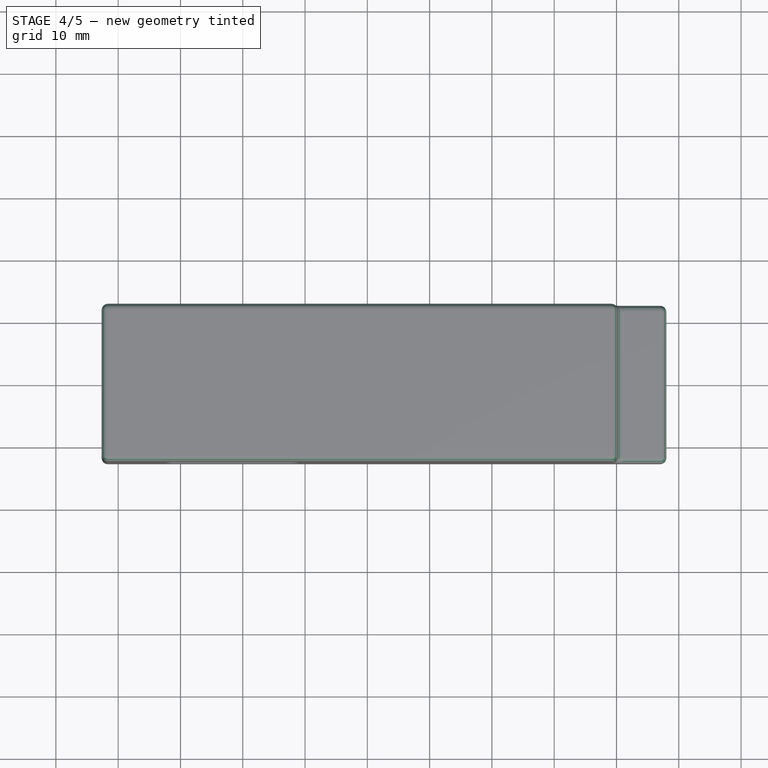
[diagram: stage 4 of 5 — top view after this stage's code; geometry added in this stage tinted green]
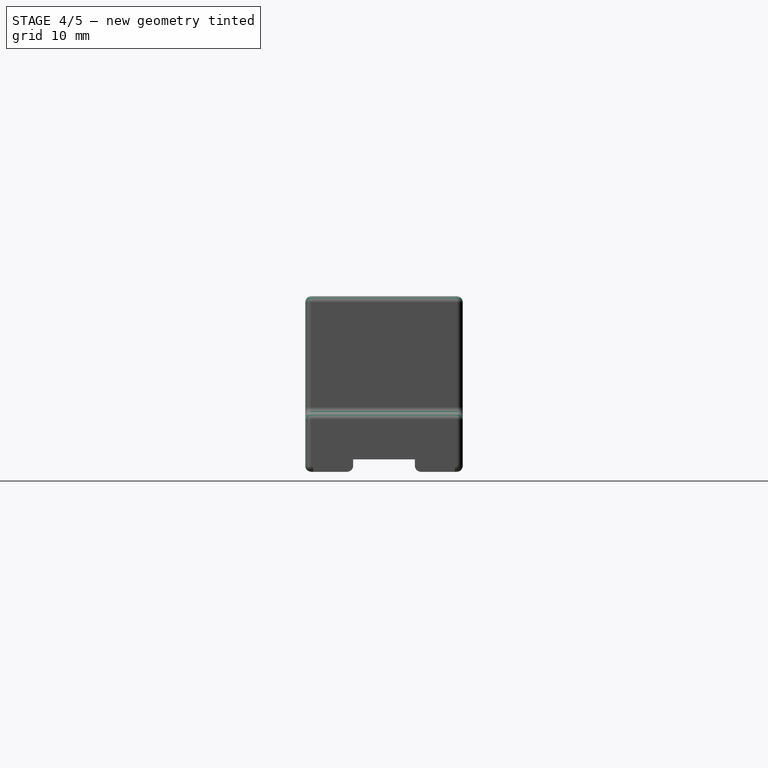
[diagram: stage 4 of 5 — right view after this stage's code; geometry added in this stage tinted green]
FEATURE [Sketcher::SketchObject] Sketch013  label="T28_Cutout"
  AttachmentOffset = pos=(0,0,9.2) rot=(0,0,1;0rad)
  ExternalGeometry = -> [Sketch004]
  MapMode = 5
  Placement = pos=(0,0,-9.2) rot=(0,1,0;3.14159rad)
  Support = -> [XY_Plane002]
  expr: .AttachmentOffset.Base.z = <<T28_Walls>>.AttachmentOffset.Base.z + <<Spreadsheet>>.CutoutOffset
  sketch-geometry (4):
    g0: LineSegment StartX=31.45 StartY=12.65 StartZ=0 EndX=11.45 EndY=12.65 EndZ=0
    g1: LineSegment StartX=11.45 StartY=12.65 StartZ=0 EndX=11.45 EndY=-12.65 EndZ=0
    g2: LineSegment StartX=11.45 StartY=-12.65 StartZ=0 EndX=31.45 EndY=-12.65 EndZ=0
    g3: LineSegment StartX=31.45 StartY=-12.65 StartZ=0 EndX=31.45 EndY=12.65 EndZ=0
  constraints (12):
    c: Coincident(g0,g1)
    c: Coincident(g1,g2)
    c: Coincident(g2,g3)
    c: Coincident(g3,g0)
    c: Horizontal(g0)
    c: Horizontal(g2)
    c: Vertical(g1)
    c: Vertical(g3)
    c: PointOnObject(g0,g-4)
    c: PointOnObject(g1,g-5)
    c: DistanceX(g0,g-3) = 10
    c: DistanceX(g0,g0) = 20
FEATURE [PartDesign::Pocket] Pocket  label="T28_Cutout_"
  BaseFeature = -> Pad008
  Length = 12
  Length2 = 100
  Profile = -> Sketch013
  Reversed = true
  Type = 0
  expr: Length = <<T28_Walls_>>.Length - <<Spreadsheet>>.CutoutOffset + <<T28_RidgeIntroLower>>.AttachmentOffset.Base.z - <<T28_RidgeIntroUpper>>.AttachmentOffset.Base.z + <<T28_Ridge_>>.Length
FEATURE [PartDesign::Body] Body  label="B28"
  Group = -> [Sketch,Sketch001,Pad,Sketch002,Pad001,Sketch003,Pad002,Fillet]
  Origin = -> Origin001
  Tip = -> Fillet
FEATURE [App::Part] Part
  Group = -> [Body]
  Origin = -> Origin
FEATURE [PartDesign::Pocket] Pocket001
  BaseFeature = -> Pocket
  Length = 2
  Length2 = 100
  Profile = -> Sketch014
  Refine = true
  Type = 0
  expr: Length = <<Spreadsheet>>.BottomWallThickness + <<Spreadsheet>>.PartTolerance * 2 + <<T28_Lock_>>.Length
FEATURE [Sketcher::SketchObject] Sketch016  label="T28_Cutout001"
  AttachmentOffset = pos=(0,0,9.2) rot=(0,0,1;0rad)
  ExternalGeometry = -> [Sketch004]
  MapMode = 5
  Placement = pos=(0,0,-9.2) rot=(0,1,0;3.14159rad)
  Support = -> [XY_Plane002]
  expr: .AttachmentOffset.Base.z = <<T28_Walls>>.AttachmentOffset.Base.z + <<Spreadsheet>>.CutoutOffset
  sketch-geometry (4):
    g0: LineSegment StartX=33.45 StartY=11.45 StartZ=0 EndX=9.45 EndY=11.45 EndZ=0
    g1: LineSegment StartX=9.45 StartY=11.45 StartZ=0 EndX=9.45 EndY=-11.45 EndZ=0
    g2: LineSegment StartX=9.45 StartY=-11.45 StartZ=0 EndX=33.45 EndY=-11.45 EndZ=0
    g3: LineSegment StartX=33.45 StartY=-11.45 StartZ=0 EndX=33.45 EndY=11.45 EndZ=0
  constraints (12):
    c: Coincident(g0,g1)
    c: Coincident(g1,g2)
    c: Coincident(g2,g3)
    c: Coincident(g3,g0)
    c: Horizontal(g0)
    c: Horizontal(g2)
    c: Vertical(g1)
    c: Vertical(g3)
    c: DistanceX(g0,g-3) = 8
    c: DistanceX(g0,g0) = 24
    c: PointOnObject(g2,g-5)
    c: PointOnObject(g0,g-4)
FEATURE [PartDesign::Fillet] Fillet001
  Base = -> Pocket001 [Face1,Face3,Face45,Face46,Face2,Edge57,Edge63,Edge65,Edge62,Edge106,Edge103,Face44,Edge47,Edge33,Edge100,Edge96,Edge29,Edge54]
  BaseFeature = -> Pocket001
  Radius = 1
  SupportTransform = false
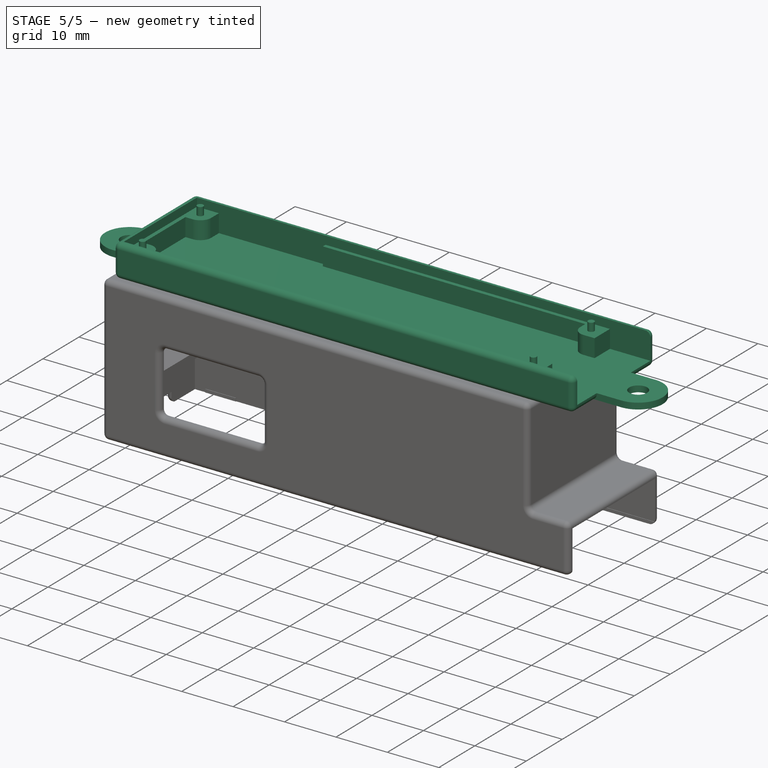
[diagram: stage 5 of 5 — iso view after this stage's code; geometry added in this stage tinted green]
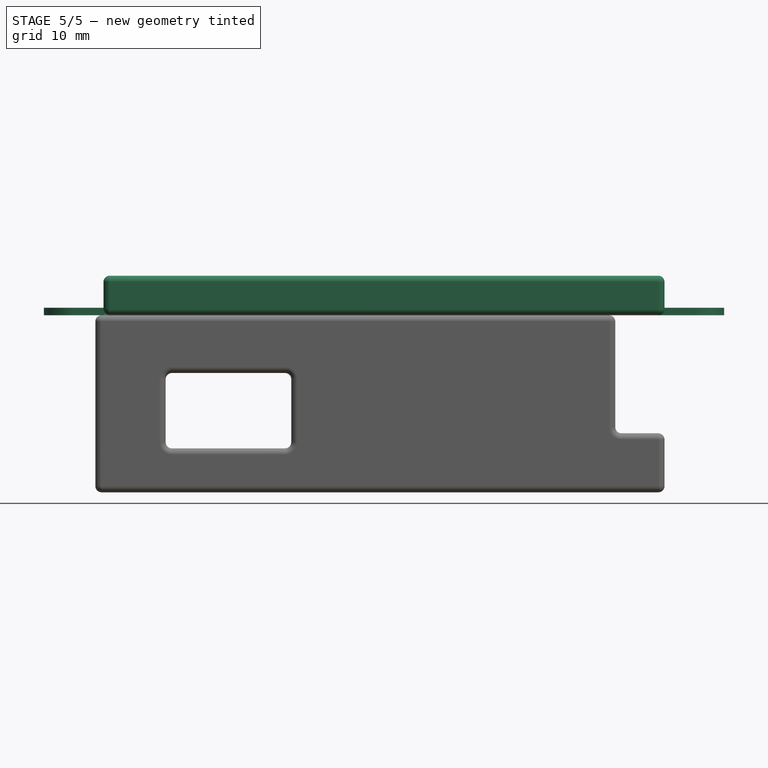
[diagram: stage 5 of 5 — front view after this stage's code; geometry added in this stage tinted green]
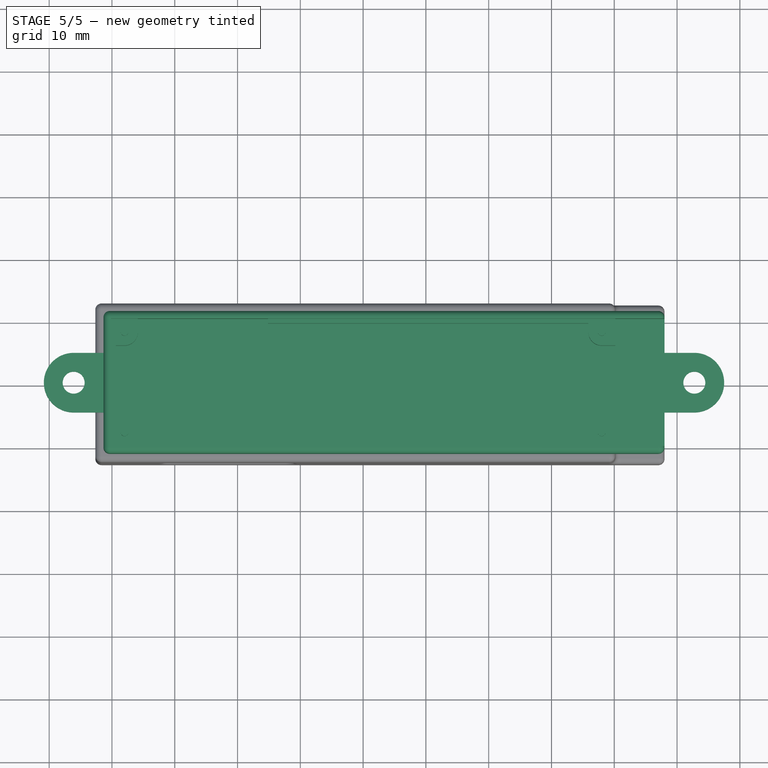
[diagram: stage 5 of 5 — top view after this stage's code; geometry added in this stage tinted green]
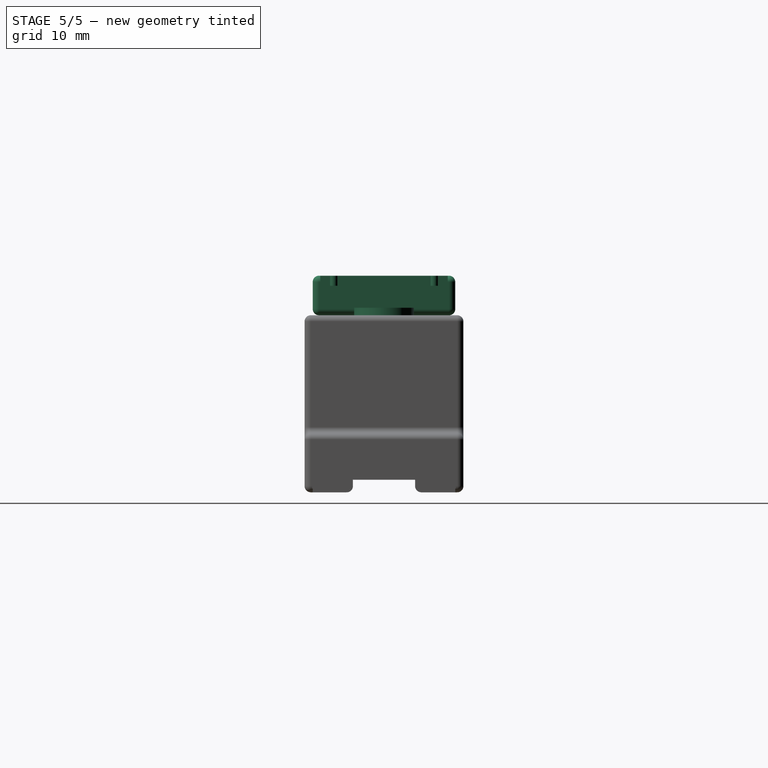
[diagram: stage 5 of 5 — right view after this stage's code; geometry added in this stage tinted green]
FEATURE [Sketcher::SketchObject] Sketch014
  AttachmentOffset = pos=(0,0,28.2) rot=(0,0,1;0rad)
  ExternalGeometry = -> [Sketch004]
  MapMode = 5
  Placement = pos=(0,0,-28.2) rot=(0,1,0;3.14159rad)
  Support = -> [XY_Plane002]
  expr: .AttachmentOffset.Base.z = <<T28_Lock>>.AttachmentOffset.Base.z + <<T28_Lock_>>.Length
  expr: Constraints[18] = <<Spreadsheet>>.PartTolerance * 2
  sketch-geometry (6):
    g0: LineSegment StartX=41.35 StartY=4.95 StartZ=0 EndX=42.65 EndY=4.95 EndZ=0
    g1: LineSegment StartX=42.65 StartY=4.95 StartZ=0 EndX=42.65 EndY=-4.95 EndZ=0
    g2: LineSegment StartX=42.65 StartY=-4.95 StartZ=0 EndX=41.35 EndY=-4.95 EndZ=0
    g3: LineSegment StartX=41.35 StartY=-4.95 StartZ=0 EndX=41.35 EndY=4.95 EndZ=0
    g4: LineSegment StartX=42 StartY=4.95 StartZ=0 EndX=42 EndY=4.75 EndZ=0
    g5: LineSegment StartX=42 StartY=-4.95 StartZ=0 EndX=42 EndY=-4.75 EndZ=0
  constraints (19):
    c: Coincident(g0,g1)
    c: Coincident(g1,g2)
    c: Coincident(g2,g3)
    c: Coincident(g3,g0)
    c: Horizontal(g0)
    c: Horizontal(g2)
    c: Vertical(g1)
    c: Vertical(g3)
    c: PointOnObject(g-4,g1)
    c: PointOnObject(g-3,g3)
    c: PointOnObject(g4,g0)
    c: PointOnObject(g4,g-3)
    c: Vertical(g4)
    c: PointOnObject(g5,g-4)
    c: Vertical(g5)
    c: Symmetric(g2,g1,g5)
    c: PointOnObject(g4,g5)
    c: Equal(g4,g5)
    c: DistanceY(g-3,g0) = 0.2
FEATURE [PartDesign::Fillet] Fillet
  Base = -> Pad002 [Face48,Face45,Edge8,Edge16,Edge10,Edge14,Edge114,Edge110,Edge108]
  BaseFeature = -> Pad002
  Radius = 1
  SupportTransform = false
FEATURE [PartDesign::Pocket] Pocket002
  BaseFeature = -> Fillet001
  Length = 5
  Length2 = 100
  Profile = -> Sketch016
  Refine = true
  Reversed = true
  Type = 1
FEATURE [Sketcher::SketchObject] Sketch017
  ExternalGeometry = -> [Sketch004,Sketch013]
  MapMode = 5
  Placement = pos=(0,0,0) rot=(0,1,0;3.14159rad)
  Support = -> [XY_Plane002]
  sketch-geometry (42):
    g0: ArcOfCircle CenterX=11.45 CenterY=-5.35 CenterZ=0 NormalX=0 NormalY=0 NormalZ=1 AngleXU=0 Radius=2 StartAngle=1.5708 EndAngle=4.71239
    g1: ArcOfCircle CenterX=31.45 CenterY=-5.35 CenterZ=0 NormalX=0 NormalY=0 NormalZ=1 AngleXU=0 Radius=2 StartAngle=4.71239 EndAngle=7.85398
    g2: LineSegment StartX=11.45 StartY=-7.35 StartZ=0 EndX=31.45 EndY=-7.35 EndZ=0
    g3: LineSegment StartX=11.45 StartY=-3.35 StartZ=0 EndX=31.45 EndY=-3.35 EndZ=0
    g4: ArcOfCircle CenterX=11.45 CenterY=5.35 CenterZ=0 NormalX=0 NormalY=0 NormalZ=1 AngleXU=0 Radius=2 StartAngle=1.5708 EndAngle=4.71239
    g5: ArcOfCircle CenterX=31.45 CenterY=5.35 CenterZ=0 NormalX=0 NormalY=0 NormalZ=1 AngleXU=0 Radius=2 StartAngle=4.71239 EndAngle=7.85398
    g6: LineSegment StartX=11.45 StartY=3.35 StartZ=0 EndX=31.45 EndY=3.35 EndZ=0
    g7: LineSegment StartX=11.45 StartY=7.35 StartZ=0 EndX=31.45 EndY=7.35 EndZ=0
    g8: LineSegment StartX=31.45 StartY=-7.35 StartZ=0 EndX=31.45 EndY=-11.35 EndZ=0
    g9: LineSegment StartX=31.45 StartY=7.35 StartZ=0 EndX=31.45 EndY=11.35 EndZ=0
    g10: ArcOfCircle CenterX=-34.95 CenterY=8.23333 CenterZ=0 NormalX=0 NormalY=0 NormalZ=1 AngleXU=0 Radius=1 StartAngle=1.5708 EndAngle=4.71239
    g11: ArcOfCircle CenterX=5.45 CenterY=8.23333 CenterZ=0 NormalX=0 NormalY=0 NormalZ=1 AngleXU=0 Radius=1 StartAngle=4.71239 EndAngle=7.85398
    g12: LineSegment StartX=-34.95 StartY=7.23333 StartZ=0 EndX=5.45 EndY=7.23333 EndZ=0
    g13: LineSegment StartX=-34.95 StartY=9.23333 StartZ=0 EndX=5.45 EndY=9.23333 EndZ=0
    g14: ArcOfCircle CenterX=-34.95 CenterY=4.11667 CenterZ=0 NormalX=0 NormalY=0 NormalZ=1 AngleXU=0 Radius=1 StartAngle=1.5708 EndAngle=4.71239
    g15: ArcOfCircle CenterX=5.45 CenterY=4.11667 CenterZ=0 NormalX=0 NormalY=0 NormalZ=1 AngleXU=0 Radius=1 StartAngle=4.71239 EndAngle=7.85398
    g16: LineSegment StartX=-34.95 StartY=3.11667 StartZ=0 EndX=5.45 EndY=3.11667 EndZ=0
    g17: LineSegment StartX=-34.95 StartY=5.11667 StartZ=0 EndX=5.45 EndY=5.11667 EndZ=0
    g18: LineSegment StartX=-34.95 StartY=9.23333 StartZ=0 EndX=-34.95 EndY=5.11667 EndZ=0
    g19: ArcOfCircle CenterX=-34.95 CenterY=-3.3e-15 CenterZ=0 NormalX=0 NormalY=0 NormalZ=1 AngleXU=0 Radius=1 StartAngle=1.5708 EndAngle=4.71239
    g20: ArcOfCircle CenterX=5.45 CenterY=-3.3e-15 CenterZ=0 NormalX=0 NormalY=0 NormalZ=1 AngleXU=0 Radius=1 StartAngle=4.71239 EndAngle=7.85398
    g21: LineSegment StartX=-34.95 StartY=-1 StartZ=0 EndX=5.45 EndY=-1 EndZ=0
    g22: LineSegment StartX=-34.95 StartY=1 StartZ=0 EndX=5.45 EndY=1 EndZ=0
    g23: LineSegment StartX=-34.95 StartY=5.11667 StartZ=0 EndX=-34.95 EndY=1 EndZ=0
    g24: ArcOfCircle CenterX=-34.95 CenterY=-4.11667 CenterZ=0 NormalX=0 NormalY=0 NormalZ=1 AngleXU=0 Radius=1 StartAngle=1.5708 EndAngle=4.71239
    g25: ArcOfCircle CenterX=5.45 CenterY=-4.11667 CenterZ=0 NormalX=0 NormalY=0 NormalZ=1 AngleXU=0 Radius=1 StartAngle=4.71239 EndAngle=7.85398
    g26: LineSegment StartX=-34.95 StartY=-5.11667 StartZ=0 EndX=5.45 EndY=-5.11667 EndZ=0
    g27: LineSegment StartX=-34.95 StartY=-3.11667 StartZ=0 EndX=5.45 EndY=-3.11667 EndZ=0
    g28: LineSegment StartX=-34.95 StartY=1 StartZ=0 EndX=-34.95 EndY=-3.11667 EndZ=0
    g29: ArcOfCircle CenterX=-34.95 CenterY=-8.23333 CenterZ=0 NormalX=0 NormalY=0 NormalZ=1 AngleXU=0 Radius=1 StartAngle=1.5708 EndAngle=4.71239
    g30: ArcOfCircle CenterX=5.45 CenterY=-8.23333 CenterZ=0 NormalX=0 NormalY=0 NormalZ=1 AngleXU=0 Radius=1 StartAngle=4.71239 EndAngle=7.85398
    g31: LineSegment StartX=-34.95 StartY=-9.23333 StartZ=0 EndX=5.45 EndY=-9.23333 EndZ=0
    g32: LineSegment StartX=-34.95 StartY=-7.23333 StartZ=0 EndX=5.45 EndY=-7.23333 EndZ=0
    g33: LineSegment StartX=-34.95 StartY=-3.11667 StartZ=0 EndX=-34.95 EndY=-7.23333 EndZ=0
    g34: LineSegment StartX=-34.95 StartY=7.23333 StartZ=0 EndX=-34.95 EndY=11.35 EndZ=0
    g35: LineSegment StartX=-34.95 StartY=-7.23333 StartZ=0 EndX=-34.95 EndY=-11.35 EndZ=0
    g36: LineSegment StartX=-35.95 StartY=8.23333 StartZ=0 EndX=-35.95 EndY=-8.23335 EndZ=0
    g37: LineSegment StartX=6.45 StartY=8.23333 StartZ=0 EndX=6.45 EndY=-8.23333 EndZ=0
    g38: LineSegment StartX=9.45 StartY=5.35 StartZ=0 EndX=9.45 EndY=-5.35 EndZ=0
    g39: LineSegment StartX=5.45 StartY=8.23333 StartZ=0 EndX=5.45 EndY=-8.23333 EndZ=0
    g40: LineSegment StartX=9.45 StartY=5.35 StartZ=0 EndX=6.45 EndY=5.35 EndZ=0
    g41: LineSegment StartX=-35.95 StartY=8.23333 StartZ=0 EndX=-38.95 EndY=8.23333 EndZ=0
  constraints (105):
    c: Tangent(g0,g3)
    c: Tangent(g0,g2)
    c: Tangent(g2,g1)
    c: Tangent(g3,g1)
    c: Horizontal(g2)
    c: Equal(g0,g1)
    c: PointOnObject(g0,g-4)
    c: PointOnObject(g1,g-5)
    c: Radius(g1) = 2
    c: DistanceY(g-6,g1) = 4
    c: Tangent(g4,g7)
    c: Tangent(g4,g6)
    c: Tangent(g6,g5)
    c: Tangent(g7,g5)
    c: Horizontal(g6)
    c: Equal(g4,g5)
    c: PointOnObject(g4,g-4)
    c: PointOnObject(g5,g-5)
    c: Equal(g5,g1)
    c: Coincident(g8,g1)
    c: PointOnObject(g8,g-6)
    c: Vertical(g8)
    c: Coincident(g9,g5)
    c: PointOnObject(g9,g-3)
    c: Vertical(g9)
    c: Equal(g9,g8)
    c: Tangent(g10,g13)
    c: Tangent(g10,g12)
    c: Tangent(g12,g11)
    c: Tangent(g13,g11)
    c: Horizontal(g12)
    c: Equal(g10,g11)
    c: Tangent(g14,g17)
    c: Tangent(g14,g16)
    c: Tangent(g16,g15)
    c: Tangent(g17,g15)
    c: Horizontal(g16)
    c: Equal(g14,g15)
    c: Coincident(g10,g18)
    c: Coincident(g14,g18)
    c: Tangent(g19,g22)
    c: Tangent(g19,g21)
    c: Tangent(g21,g20)
    c: Tangent(g22,g20)
    c: Horizontal(g21)
    c: Equal(g19,g20)
    c: Coincident(g14,g23)
    c: Coincident(g19,g23)
    c: Equal(g18,g23)
    c: Tangent(g24,g27)
    c: Tangent(g24,g26)
    c: Tangent(g26,g25)
    c: Tangent(g27,g25)
    c: Horizontal(g26)
    c: Equal(g24,g25)
    c: Coincident(g19,g28)
    c: Coincident(g24,g28)
    c: Equal(g18,g28)
    c: Tangent(g29,g32)
    c: Tangent(g29,g31)
    c: Tangent(g31,g30)
    c: Tangent(g32,g30)
    c: Horizontal(g31)
    c: Equal(g29,g30)
    c: Coincident(g24,g33)
    c: Coincident(g29,g33)
    c: Equal(g18,g33)
    c: Equal(g29,g24)
    c: Equal(g24,g19)
    c: Equal(g19,g14)
    c: Equal(g14,g10)
    c: Radius(g10) = 1
    c: Coincident(g34,g10)
    c: PointOnObject(g34,g-3)
    c: Vertical(g34)
    c: Coincident(g35,g29)
    c: PointOnObject(g35,g-6)
    c: Vertical(g35)
    c: Equal(g35,g34)
    c: Equal(g34,g18)
    c: Vertical(g28)
    c: Vertical(g18)
    c: Vertical(g23)
    c: Vertical(g33)
    c: PointOnObject(g36,g29)
    c: Vertical(g36)
    c: Tangent(g36,g10) = -1.5708
    c: Vertical(g37)
    c: Tangent(g37,g30) = 1.5708
    c: Tangent(g37,g11) = 1.5708
    c: Tangent(g38,g0) = -1.5708
    c: Tangent(g38,g4) = -1.5708
    c: Coincident(g39,g11)
    c: Coincident(g39,g30)
    c: PointOnObject(g25,g39)
    c: PointOnObject(g20,g39)
    c: PointOnObject(g15,g39)
    c: Coincident(g40,g38)
    c: PointOnObject(g40,g37)
    c: Horizontal(g40)
    c: Coincident(g41,g36)
    c: PointOnObject(g41,g-7)
    c: Horizontal(g41)
    c: Equal(g41,g40)
    c: DistanceX(g41,g41) = 3
FEATURE [PartDesign::Pocket] Pocket003
  BaseFeature = -> Pocket002
  Length = 5
  Length2 = 100
  Profile = -> Sketch017
  Reversed = true
  Type = 2
FEATURE [PartDesign::Body] Body001  label="T28"
  Group = -> [ShapeBinder,Sketch004,Sketch005,Pad003,Sketch006,Pad004,Sketch007,Sketch008,AdditiveLoft,Sketch009,Pad005,Sketch010,Pad006,Sketch011,Pad007,Sketch012,Pad008,Sketch013,Pocket,Sketch014,Pocket001,Fillet001,Sketch016,Pocket002,Sketch017,Pocket003]
  Origin = -> Origin002
  Placement = pos=(0,0,27.5) rot=(1,0,0;0rad)
  Tip = -> Pocket003
  expr: .Placement.Base.z = <<B28_PCBLock>>.AttachmentOffset.Base.z + <<B28_PCBLock_>>.Length + <<Spreadsheet>>.ComponentHeight + <<Spreadsheet>>.BottomWallThickness
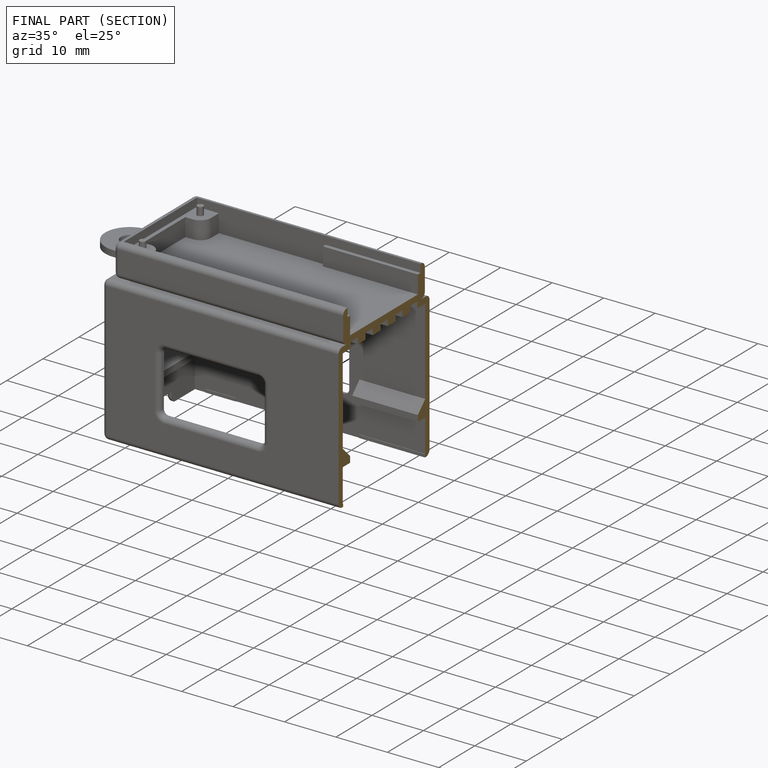
[diagram: finished part — half-section view (interior)]
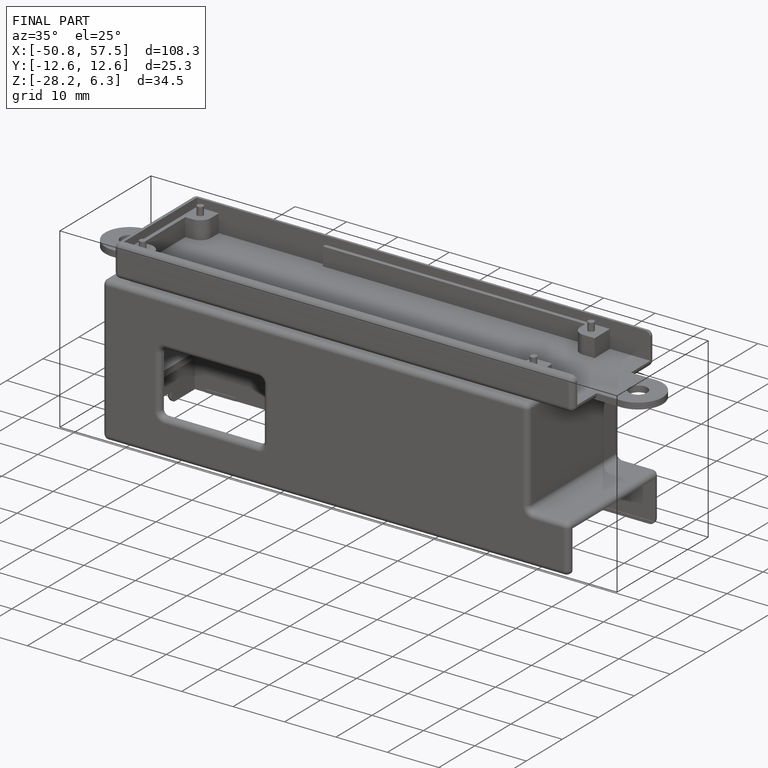
[diagram: finished part — iso view with bounding-box wireframe]
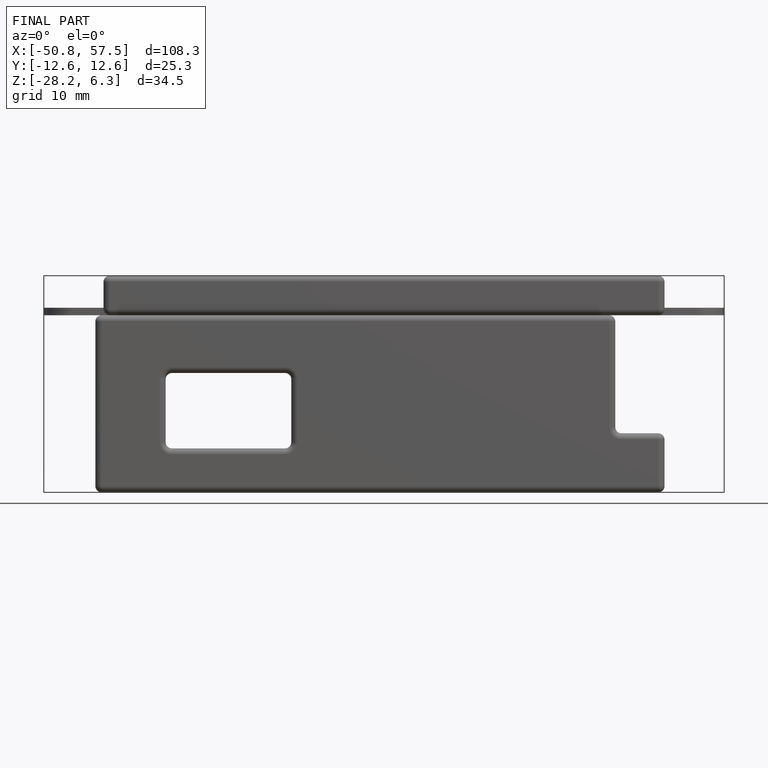
[diagram: finished part — front view with bounding-box wireframe]
